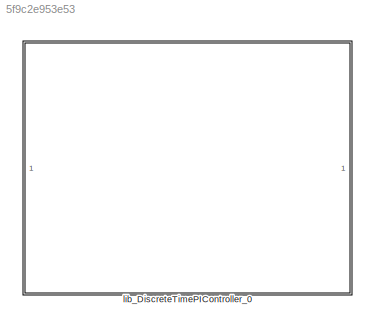
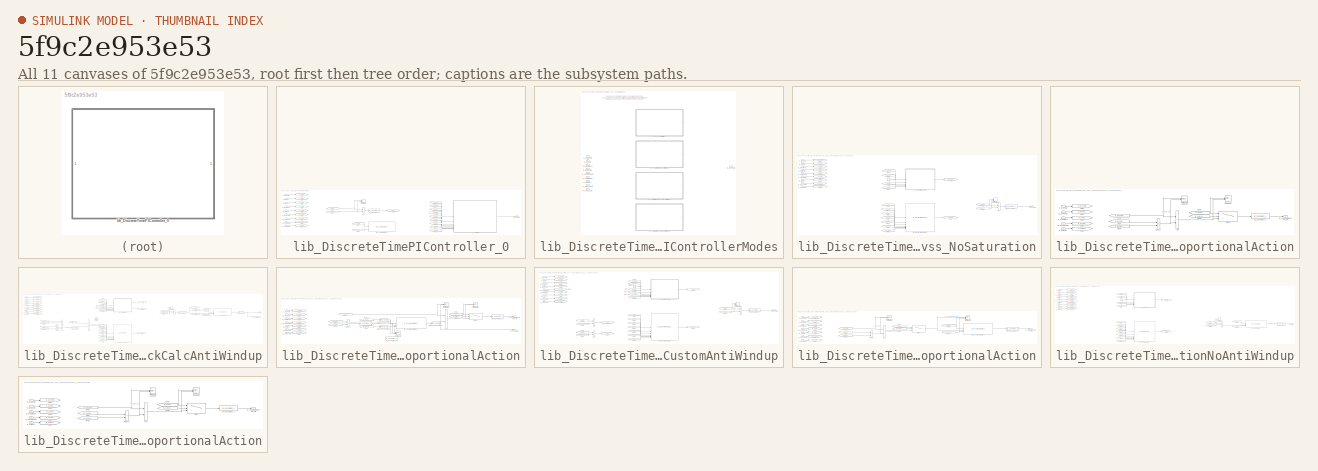
[diagram: thumbnail index - all 11 canvases of the model, root first then tree order]
MODEL slx_5f9c2e953e53
KIND library
CONFIG AbsTol = auto
CONFIG EnableMultiTasking = off
CONFIG FixedStep = auto
CONFIG MaxStep = auto
CONFIG MinStep = auto
CONFIG RelTol = 1e-3
CONFIG SampleTimeConstraint = Unconstrained
CONFIG SolverName = VariableStepAuto
CONFIG StartTime = 0.0
CONFIG StopTime = 10.0
BLOCK [SubSystem] lib_DiscreteTimePIController_0
BLOCK [Sum] lib_DiscreteTimePIController_0/Add1
  IconShape = rectangular
  Inputs = +-
  OutDataTypeStr = Inherit: Inherit via back propagation
  RndMeth = Simplest
BLOCK [Constant] lib_DiscreteTimePIController_0/Constant5
  Value = lb_parSampTime
BLOCK [DataTypeDuplicate] lib_DiscreteTimePIController_0/Data Type Duplicate3
  NameLocation = top
BLOCK [From] lib_DiscreteTimePIController_0/From
  GotoTag = lb_genRef
BLOCK [From] lib_DiscreteTimePIController_0/From1
  GotoTag = lb_genAct
BLOCK [From] lib_DiscreteTimePIController_0/From10
  GotoTag = lb_genInpErr
BLOCK [From] lib_DiscreteTimePIController_0/From2
  GotoTag = lb_genPropGain
BLOCK [From] lib_DiscreteTimePIController_0/From3
  Commented = on
  GotoTag = lb_genInpErrUpLim
BLOCK [From] lib_DiscreteTimePIController_0/From4
  Commented = on
  GotoTag = lb_genInpErrLowLim
BLOCK [From] lib_DiscreteTimePIController_0/From41
  GotoTag = lb_bolRset
BLOCK [From] lib_DiscreteTimePIController_0/From43
  GotoTag = lb_genInitCond
BLOCK [From] lib_DiscreteTimePIController_0/From44
  GotoTag = lb_genLowLim
BLOCK [From] lib_DiscreteTimePIController_0/From45
  GotoTag = lb_genUpLim
BLOCK [From] lib_DiscreteTimePIController_0/From46
  GotoTag = lb_genIntgGain
BLOCK [From] lib_DiscreteTimePIController_0/From47
  GotoTag = lb_genFdfw
BLOCK [Goto] lib_DiscreteTimePIController_0/Goto1
  GotoTag = lb_genFdfw
BLOCK [Goto] lib_DiscreteTimePIController_0/Goto18
  GotoTag = lb_genIntgGain
BLOCK [Goto] lib_DiscreteTimePIController_0/Goto2
  GotoTag = lb_genInpErr
BLOCK [Goto] lib_DiscreteTimePIController_0/Goto3
  GotoTag = lb_genRef
BLOCK [Goto] lib_DiscreteTimePIController_0/Goto4
  GotoTag = lb_genAct
BLOCK [Goto] lib_DiscreteTimePIController_0/Goto5
  GotoTag = lb_genInitCond
BLOCK [Goto] lib_DiscreteTimePIController_0/Goto6
  GotoTag = lb_bolRset
BLOCK [Goto] lib_DiscreteTimePIController_0/Goto7
  GotoTag = lb_genLowLim
BLOCK [Goto] lib_DiscreteTimePIController_0/Goto8
  GotoTag = lb_genUpLim
BLOCK [Goto] lib_DiscreteTimePIController_0/Goto9
  GotoTag = lb_genPropGain
BLOCK [Inport] lib_DiscreteTimePIController_0/lb_bolRset
  OutDataTypeStr = boolean
  Port = 5
BLOCK [Inport] lib_DiscreteTimePIController_0/lb_genAct
  OutMax = lb_parRefInpMaxVal
  OutMin = lb_parRefInpMinVal
  Port = 3
BLOCK [Inport] lib_DiscreteTimePIController_0/lb_genFdfw
  OutDataTypeStr = lb_parOutpDataType
BLOCK [Inport] lib_DiscreteTimePIController_0/lb_genInitCond
  OutDataTypeStr = lb_parOutpDataType
  Port = 4
BLOCK [Inport] lib_DiscreteTimePIController_0/lb_genIntgGain
  OutMax = lb_parMaxIntgGain
  OutMin = 0
  Port = 9
BLOCK [Inport] lib_DiscreteTimePIController_0/lb_genLowLim
  OutDataTypeStr = lb_parOutpDataType
  Port = 6
BLOCK [Outport] lib_DiscreteTimePIController_0/lb_genOutp
  VectorParamsAs1DForOutWhenUnconnected = off
BLOCK [Inport] lib_DiscreteTimePIController_0/lb_genPropGain
  OutMax = lb_parMaxPropGain
  OutMin = 0
  Port = 8
BLOCK [Inport] lib_DiscreteTimePIController_0/lb_genRef
  OutMax = lb_parRefInpMaxVal
  OutMin = lb_parRefInpMinVal
  Port = 2
BLOCK [Inport] lib_DiscreteTimePIController_0/lb_genUpLim
  OutDataTypeStr = lb_parOutpDataType
  Port = 7
BLOCK [Reference] lib_DiscreteTimePIController_0/lib_Conversion_2  REF=lib_conversion/lib_Conversion_0  (lib defined in slx_7f5c0202220d)
  SourceBlock = lib_conversion/lib_Conversion_0
BLOCK [Reference] lib_DiscreteTimePIController_0/lib_DynamicSaturator_0  REF=lib_dynamic_saturator/lib_DynamicSaturator_0  (lib defined in slx_fcc78f0d1256)
  Commented = on
  SourceBlock = lib_dynamic_saturator/lib_DynamicSaturator_0
BLOCK [SubSystem] lib_DiscreteTimePIController_0/vss_PIControllerModes
  Variant = on
BLOCK [Inport] lib_DiscreteTimePIController_0/vss_PIControllerModes/lb_bolRset
  Port = 7
BLOCK [Inport] lib_DiscreteTimePIController_0/vss_PIControllerModes/lb_genFdfw
BLOCK [Inport] lib_DiscreteTimePIController_0/vss_PIControllerModes/lb_genInitCond
  Port = 3
BLOCK [Inport] lib_DiscreteTimePIController_0/vss_PIControllerModes/lb_genInp
  Port = 2
BLOCK [Inport] lib_DiscreteTimePIController_0/vss_PIControllerModes/lb_genIntgGain
  Port = 6
BLOCK [Inport] lib_DiscreteTimePIController_0/vss_PIControllerModes/lb_genLowLim
  Port = 8
BLOCK [Outport] lib_DiscreteTimePIController_0/vss_PIControllerModes/lb_genOutp
BLOCK [Inport] lib_DiscreteTimePIController_0/vss_PIControllerModes/lb_genPropGain
  Port = 5
BLOCK [Inport] lib_DiscreteTimePIController_0/vss_PIControllerModes/lb_genUpLim
  Port = 9
BLOCK [Inport] lib_DiscreteTimePIController_0/vss_PIControllerModes/lb_tSampTime
  Port = 4
BLOCK [SubSystem] lib_DiscreteTimePIController_0/vss_PIControllerModes/vss_NoSaturation
  VariantControl = lb_parSatMode == 1
BLOCK [Sum] lib_DiscreteTimePIController_0/vss_PIControllerModes/vss_NoSaturation/Add2
  IconShape = rectangular
  OutDataTypeStr = Inherit: Inherit via back propagation
  RndMeth = Simplest
BLOCK [Constant] lib_DiscreteTimePIController_0/vss_PIControllerModes/vss_NoSaturation/Constant4
  OutDataTypeStr = lb_parOutpDataType
  Value = 0
BLOCK [DataTypeDuplicate] lib_DiscreteTimePIController_0/vss_PIControllerModes/vss_NoSaturation/Data Type Duplicate2
  NameLocation = top
BLOCK [From] lib_DiscreteTimePIController_0/vss_PIControllerModes/vss_NoSaturation/From
  GotoTag = lb_genInpErr
BLOCK [From] lib_DiscreteTimePIController_0/vss_PIControllerModes/vss_NoSaturation/From1
  GotoTag = lb_genLowLim
BLOCK [From] lib_DiscreteTimePIController_0/vss_PIControllerModes/vss_NoSaturation/From12
  GotoTag = lb_genUnSatIntgActn
BLOCK [From] lib_DiscreteTimePIController_0/vss_PIControllerModes/vss_NoSaturation/From2
  GotoTag = lb_genUpLim
BLOCK [From] lib_DiscreteTimePIController_0/vss_PIControllerModes/vss_NoSaturation/From26
  GotoTag = lb_genInpErr
BLOCK [From] lib_DiscreteTimePIController_0/vss_PIControllerModes/vss_NoSaturation/From27
  GotoTag = lb_bolRset
BLOCK [From] lib_DiscreteTimePIController_0/vss_PIControllerModes/vss_NoSaturation/From3
  GotoTag = lb_tSampTime
BLOCK [From] lib_DiscreteTimePIController_0/vss_PIControllerModes/vss_NoSaturation/From30
  GotoTag = lb_bolRset
BLOCK [From] lib_DiscreteTimePIController_0/vss_PIControllerModes/vss_NoSaturation/From31
  GotoTag = lb_genFdfw
BLOCK [From] lib_DiscreteTimePIController_0/vss_PIControllerModes/vss_NoSaturation/From32
  GotoTag = lb_genInitCond
BLOCK [From] lib_DiscreteTimePIController_0/vss_PIControllerModes/vss_NoSaturation/From4
  GotoTag = lb_genPropGain
BLOCK [From] lib_DiscreteTimePIController_0/vss_PIControllerModes/vss_NoSaturation/From5
  GotoTag = lb_unSatFdfwPlusPropActn
BLOCK [From] lib_DiscreteTimePIController_0/vss_PIControllerModes/vss_NoSaturation/From9
  GotoTag = lb_genIntgGain
BLOCK [Goto] lib_DiscreteTimePIController_0/vss_PIControllerModes/vss_NoSaturation/Goto
  GotoTag = lb_genInpErr
BLOCK [Goto] lib_DiscreteTimePIController_0/vss_PIControllerModes/vss_NoSaturation/Goto1
  GotoTag = lb_genLowLim
BLOCK [Goto] lib_DiscreteTimePIController_0/vss_PIControllerModes/vss_NoSaturation/Goto10
  GotoTag = lb_genFdfw
BLOCK [Goto] lib_DiscreteTimePIController_0/vss_PIControllerModes/vss_NoSaturation/Goto2
  GotoTag = lb_genUpLim
BLOCK [Goto] lib_DiscreteTimePIController_0/vss_PIControllerModes/vss_NoSaturation/Goto3
  GotoTag = lb_genInitCond
BLOCK [Goto] lib_DiscreteTimePIController_0/vss_PIControllerModes/vss_NoSaturation/Goto4
  GotoTag = lb_genIntgGain
BLOCK [Goto] lib_DiscreteTimePIController_0/vss_PIControllerModes/vss_NoSaturation/Goto5
  GotoTag = lb_bolRset
BLOCK [Goto] lib_DiscreteTimePIController_0/vss_PIControllerModes/vss_NoSaturation/Goto6
  GotoTag = lb_tSampTime
BLOCK [Goto] lib_DiscreteTimePIController_0/vss_PIControllerModes/vss_NoSaturation/Goto7
  GotoTag = lb_genUnSatIntgActn
BLOCK [Goto] lib_DiscreteTimePIController_0/vss_PIControllerModes/vss_NoSaturation/Goto8
  GotoTag = lb_unSatFdfwPlusPropActn
BLOCK [Goto] lib_DiscreteTimePIController_0/vss_PIControllerModes/vss_NoSaturation/Goto9
  GotoTag = lb_genPropGain
BLOCK [Inport] lib_DiscreteTimePIController_0/vss_PIControllerModes/vss_NoSaturation/lb_bolRset
  Port = 7
BLOCK [Inport] lib_DiscreteTimePIController_0/vss_PIControllerModes/vss_NoSaturation/lb_genFdfw
BLOCK [Inport] lib_DiscreteTimePIController_0/vss_PIControllerModes/vss_NoSaturation/lb_genInitCond
  Port = 3
BLOCK [Inport] lib_DiscreteTimePIController_0/vss_PIControllerModes/vss_NoSaturation/lb_genInp
  Port = 2
BLOCK [Inport] lib_DiscreteTimePIController_0/vss_PIControllerModes/vss_NoSaturation/lb_genIntgGain
  Port = 6
BLOCK [Inport] lib_DiscreteTimePIController_0/vss_PIControllerModes/vss_NoSaturation/lb_genLowLim
  Port = 8
BLOCK [Outport] lib_DiscreteTimePIController_0/vss_PIControllerModes/vss_NoSaturation/lb_genOutp
  VectorParamsAs1DForOutWhenUnconnected = off
BLOCK [Inport] lib_DiscreteTimePIController_0/vss_PIControllerModes/vss_NoSaturation/lb_genPropGain
  Port = 5
BLOCK [Inport] lib_DiscreteTimePIController_0/vss_PIControllerModes/vss_NoSaturation/lb_genUpLim
  Port = 9
BLOCK [Inport] lib_DiscreteTimePIController_0/vss_PIControllerModes/vss_NoSaturation/lb_tSampTime
  Port = 4
BLOCK [Reference] lib_DiscreteTimePIController_0/vss_PIControllerModes/vss_NoSaturation/lib_Conversion_1  REF=lib_conversion/lib_Conversion_0  (lib defined in slx_7f5c0202220d)
  SourceBlock = lib_conversion/lib_Conversion_0
BLOCK [Reference] lib_DiscreteTimePIController_0/vss_PIControllerModes/vss_NoSaturation/lib_DiscreteTimeIntegrator_1  REF=lib_discrete_time_integrator/lib_DiscreteTimeIntegrator_0
  LibrarySourceBlock = vhit_control_library/lib_DiscreteTimeIntegrator_0
  SourceBlock = lib_discrete_time_integrator/lib_DiscreteTimeIntegrator_0
BLOCK [SubSystem] lib_DiscreteTimePIController_0/vss_PIControllerModes/vss_NoSaturation/sss_ProportionalAction
BLOCK [Sum] lib_DiscreteTimePIController_0/vss_PIControllerModes/vss_NoSaturation/sss_ProportionalAction/Add
  IconShape = rectangular
  OutDataTypeStr = Inherit: Same as first input
  RndMeth = Simplest
BLOCK [DataTypeDuplicate] lib_DiscreteTimePIController_0/vss_PIControllerModes/vss_NoSaturation/sss_ProportionalAction/Data Type Duplicate
BLOCK [DataTypeDuplicate] lib_DiscreteTimePIController_0/vss_PIControllerModes/vss_NoSaturation/sss_ProportionalAction/Data Type Duplicate1
BLOCK [From] lib_DiscreteTimePIController_0/vss_PIControllerModes/vss_NoSaturation/sss_ProportionalAction/From
  GotoTag = lb_genPropGain
BLOCK [From] lib_DiscreteTimePIController_0/vss_PIControllerModes/vss_NoSaturation/sss_ProportionalAction/From2
  GotoTag = lb_genInpErr
BLOCK [From] lib_DiscreteTimePIController_0/vss_PIControllerModes/vss_NoSaturation/sss_ProportionalAction/From3
  GotoTag = lb_genFdfw
BLOCK [From] lib_DiscreteTimePIController_0/vss_PIControllerModes/vss_NoSaturation/sss_ProportionalAction/From5
  GotoTag = lb_bolRset
BLOCK [From] lib_DiscreteTimePIController_0/vss_PIControllerModes/vss_NoSaturation/sss_ProportionalAction/From6
  GotoTag = lb_genInitCond
BLOCK [Goto] lib_DiscreteTimePIController_0/vss_PIControllerModes/vss_NoSaturation/sss_ProportionalAction/Goto2
  GotoTag = lb_genInpErr
BLOCK [Goto] lib_DiscreteTimePIController_0/vss_PIControllerModes/vss_NoSaturation/sss_ProportionalAction/Goto3
  GotoTag = lb_genFdfw
BLOCK [Goto] lib_DiscreteTimePIController_0/vss_PIControllerModes/vss_NoSaturation/sss_ProportionalAction/Goto4
  GotoTag = lb_bolRset
BLOCK [Goto] lib_DiscreteTimePIController_0/vss_PIControllerModes/vss_NoSaturation/sss_ProportionalAction/Goto5
  GotoTag = lb_genInitCond
BLOCK [Goto] lib_DiscreteTimePIController_0/vss_PIControllerModes/vss_NoSaturation/sss_ProportionalAction/Goto9
  GotoTag = lb_genPropGain
BLOCK [Product] lib_DiscreteTimePIController_0/vss_PIControllerModes/vss_NoSaturation/sss_ProportionalAction/Product
  OutDataTypeStr = Inherit: Inherit via back propagation
  RndMeth = Simplest
BLOCK [Switch] lib_DiscreteTimePIController_0/vss_PIControllerModes/vss_NoSaturation/sss_ProportionalAction/Switch1
  Criteria = u2 ~= 0
  InputSameDT = off
  OutDataTypeStr = Inherit: Inherit via back propagation
  SaturateOnIntegerOverflow = off
BLOCK [Inport] lib_DiscreteTimePIController_0/vss_PIControllerModes/vss_NoSaturation/sss_ProportionalAction/lb_bolRset
  Port = 5
BLOCK [Inport] lib_DiscreteTimePIController_0/vss_PIControllerModes/vss_NoSaturation/sss_ProportionalAction/lb_genFdfw
BLOCK [Inport] lib_DiscreteTimePIController_0/vss_PIControllerModes/vss_NoSaturation/sss_ProportionalAction/lb_genInitCond
  Port = 3
BLOCK [Inport] lib_DiscreteTimePIController_0/vss_PIControllerModes/vss_NoSaturation/sss_ProportionalAction/lb_genInpErr
  Port = 2
BLOCK [Inport] lib_DiscreteTimePIController_0/vss_PIControllerModes/vss_NoSaturation/sss_ProportionalAction/lb_genPropGain
  Port = 4
BLOCK [Outport] lib_DiscreteTimePIController_0/vss_PIControllerModes/vss_NoSaturation/sss_ProportionalAction/lb_unSatFdfwPlusPropActn
BLOCK [Reference] lib_DiscreteTimePIController_0/vss_PIControllerModes/vss_NoSaturation/sss_ProportionalAction/lib_Conversion_1  REF=lib_conversion/lib_Conversion_0  (lib defined in slx_7f5c0202220d)
  SourceBlock = lib_conversion/lib_Conversion_0
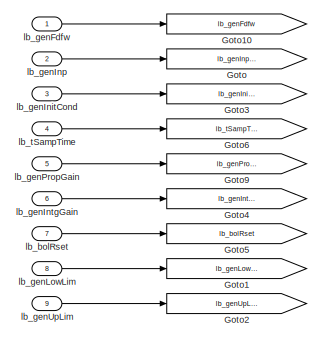
[diagram: lib_DiscreteTimePIController_0/vss_PIControllerModes/vss_SaturationBackCalcAntiWindup - part 1/4, top left region]
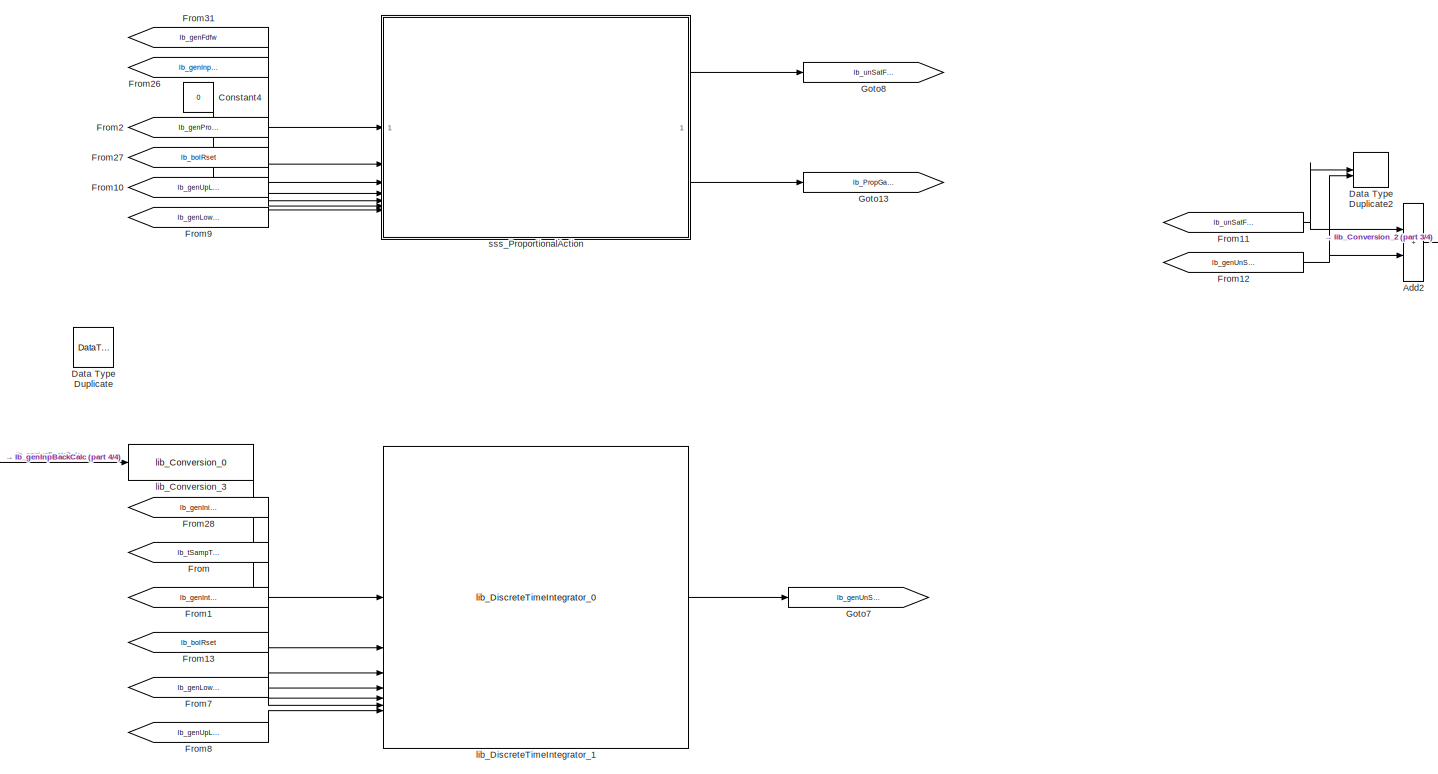
[diagram: lib_DiscreteTimePIController_0/vss_PIControllerModes/vss_SaturationBackCalcAntiWindup - part 2/4, center side, full height]
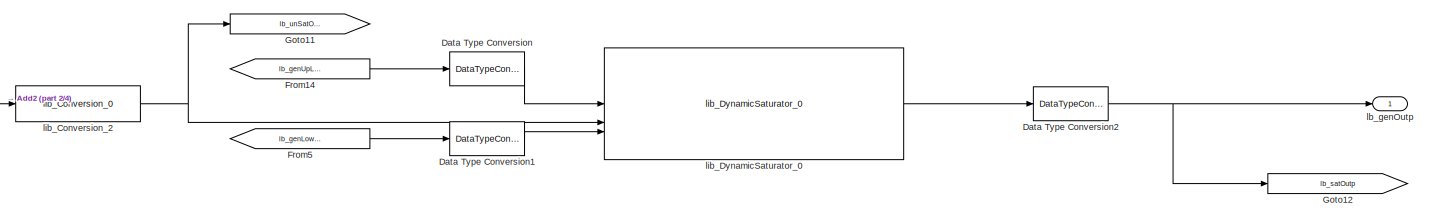
[diagram: lib_DiscreteTimePIController_0/vss_PIControllerModes/vss_SaturationBackCalcAntiWindup - part 3/4, middle right region]
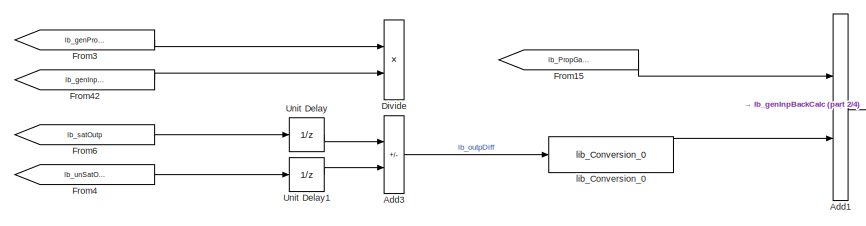
[diagram: lib_DiscreteTimePIController_0/vss_PIControllerModes/vss_SaturationBackCalcAntiWindup - part 4/4, middle left region]
BLOCK [SubSystem] lib_DiscreteTimePIController_0/vss_PIControllerModes/vss_SaturationBackCalcAntiWindup
  VariantControl = lb_parSatMode == 3
BLOCK [Sum] lib_DiscreteTimePIController_0/vss_PIControllerModes/vss_SaturationBackCalcAntiWindup/Add1
  IconShape = rectangular
  OutDataTypeStr = Inherit: Inherit via back propagation
  RndMeth = Simplest
BLOCK [Sum] lib_DiscreteTimePIController_0/vss_PIControllerModes/vss_SaturationBackCalcAntiWindup/Add2
  IconShape = rectangular
  OutDataTypeStr = Inherit: Inherit via back propagation
  RndMeth = Simplest
BLOCK [Sum] lib_DiscreteTimePIController_0/vss_PIControllerModes/vss_SaturationBackCalcAntiWindup/Add3
  IconShape = rectangular
  Inputs = +-
  OutDataTypeStr = Inherit: Inherit via back propagation
  RndMeth = Simplest
BLOCK [Constant] lib_DiscreteTimePIController_0/vss_PIControllerModes/vss_SaturationBackCalcAntiWindup/Constant4
  OutDataTypeStr = lb_parOutpDataType
  Value = 0
BLOCK [DataTypeConversion] lib_DiscreteTimePIController_0/vss_PIControllerModes/vss_SaturationBackCalcAntiWindup/Data Type Conversion
  OutDataTypeStr = lb_outpDiffDataType
  RndMeth = Floor
  SaturateOnIntegerOverflow = off
BLOCK [DataTypeConversion] lib_DiscreteTimePIController_0/vss_PIControllerModes/vss_SaturationBackCalcAntiWindup/Data Type Conversion1
  OutDataTypeStr = lb_outpDiffDataType
  RndMeth = Floor
  SaturateOnIntegerOverflow = off
BLOCK [DataTypeConversion] lib_DiscreteTimePIController_0/vss_PIControllerModes/vss_SaturationBackCalcAntiWindup/Data Type Conversion2
  OutDataTypeStr = lb_parOutpDataType
  RndMeth = Floor
  SaturateOnIntegerOverflow = off
BLOCK [DataTypeDuplicate] lib_DiscreteTimePIController_0/vss_PIControllerModes/vss_SaturationBackCalcAntiWindup/Data Type Duplicate
  Commented = on
BLOCK [DataTypeDuplicate] lib_DiscreteTimePIController_0/vss_PIControllerModes/vss_SaturationBackCalcAntiWindup/Data Type Duplicate2
  NameLocation = top
BLOCK [Product] lib_DiscreteTimePIController_0/vss_PIControllerModes/vss_SaturationBackCalcAntiWindup/Divide
  Commented = on
  Inputs = **
  OutDataTypeStr = Inherit: Inherit via back propagation
BLOCK [From] lib_DiscreteTimePIController_0/vss_PIControllerModes/vss_SaturationBackCalcAntiWindup/From
  GotoTag = lb_tSampTime
BLOCK [From] lib_DiscreteTimePIController_0/vss_PIControllerModes/vss_SaturationBackCalcAntiWindup/From1
  GotoTag = lb_genIntgGain
BLOCK [From] lib_DiscreteTimePIController_0/vss_PIControllerModes/vss_SaturationBackCalcAntiWindup/From10
  GotoTag = lb_genUpLim
BLOCK [From] lib_DiscreteTimePIController_0/vss_PIControllerModes/vss_SaturationBackCalcAntiWindup/From11
  GotoTag = lb_unSatFdfwPlusPropActn
BLOCK [From] lib_DiscreteTimePIController_0/vss_PIControllerModes/vss_SaturationBackCalcAntiWindup/From12
  GotoTag = lb_genUnSatIntgActn
BLOCK [From] lib_DiscreteTimePIController_0/vss_PIControllerModes/vss_SaturationBackCalcAntiWindup/From13
  GotoTag = lb_bolRset
BLOCK [From] lib_DiscreteTimePIController_0/vss_PIControllerModes/vss_SaturationBackCalcAntiWindup/From14
  GotoTag = lb_genUpLim
BLOCK [From] lib_DiscreteTimePIController_0/vss_PIControllerModes/vss_SaturationBackCalcAntiWindup/From15
  GotoTag = lb_PropGainErr
BLOCK [From] lib_DiscreteTimePIController_0/vss_PIControllerModes/vss_SaturationBackCalcAntiWindup/From2
  GotoTag = lb_genPropGain
BLOCK [From] lib_DiscreteTimePIController_0/vss_PIControllerModes/vss_SaturationBackCalcAntiWindup/From26
  GotoTag = lb_genInpErr
BLOCK [From] lib_DiscreteTimePIController_0/vss_PIControllerModes/vss_SaturationBackCalcAntiWindup/From27
  GotoTag = lb_bolRset
BLOCK [From] lib_DiscreteTimePIController_0/vss_PIControllerModes/vss_SaturationBackCalcAntiWindup/From28
  GotoTag = lb_genInitCond
BLOCK [From] lib_DiscreteTimePIController_0/vss_PIControllerModes/vss_SaturationBackCalcAntiWindup/From3
  Commented = on
  GotoTag = lb_genPropGain
BLOCK [From] lib_DiscreteTimePIController_0/vss_PIControllerModes/vss_SaturationBackCalcAntiWindup/From31
  GotoTag = lb_genFdfw
BLOCK [From] lib_DiscreteTimePIController_0/vss_PIControllerModes/vss_SaturationBackCalcAntiWindup/From4
  GotoTag = lb_unSatOutp
BLOCK [From] lib_DiscreteTimePIController_0/vss_PIControllerModes/vss_SaturationBackCalcAntiWindup/From42
  Commented = on
  GotoTag = lb_genInpErr
BLOCK [From] lib_DiscreteTimePIController_0/vss_PIControllerModes/vss_SaturationBackCalcAntiWindup/From5
  GotoTag = lb_genLowLim
BLOCK [From] lib_DiscreteTimePIController_0/vss_PIControllerModes/vss_SaturationBackCalcAntiWindup/From6
  GotoTag = lb_satOutp
BLOCK [From] lib_DiscreteTimePIController_0/vss_PIControllerModes/vss_SaturationBackCalcAntiWindup/From7
  GotoTag = lb_genLowLim
BLOCK [From] lib_DiscreteTimePIController_0/vss_PIControllerModes/vss_SaturationBackCalcAntiWindup/From8
  GotoTag = lb_genUpLim
BLOCK [From] lib_DiscreteTimePIController_0/vss_PIControllerModes/vss_SaturationBackCalcAntiWindup/From9
  GotoTag = lb_genLowLim
BLOCK [Goto] lib_DiscreteTimePIController_0/vss_PIControllerModes/vss_SaturationBackCalcAntiWindup/Goto
  GotoTag = lb_genInpErr
BLOCK [Goto] lib_DiscreteTimePIController_0/vss_PIControllerModes/vss_SaturationBackCalcAntiWindup/Goto1
  GotoTag = lb_genLowLim
BLOCK [Goto] lib_DiscreteTimePIController_0/vss_PIControllerModes/vss_SaturationBackCalcAntiWindup/Goto10
  GotoTag = lb_genFdfw
BLOCK [Goto] lib_DiscreteTimePIController_0/vss_PIControllerModes/vss_SaturationBackCalcAntiWindup/Goto11
  GotoTag = lb_unSatOutp
BLOCK [Goto] lib_DiscreteTimePIController_0/vss_PIControllerModes/vss_SaturationBackCalcAntiWindup/Goto12
  GotoTag = lb_satOutp
BLOCK [Goto] lib_DiscreteTimePIController_0/vss_PIControllerModes/vss_SaturationBackCalcAntiWindup/Goto13
  GotoTag = lb_PropGainErr
BLOCK [Goto] lib_DiscreteTimePIController_0/vss_PIControllerModes/vss_SaturationBackCalcAntiWindup/Goto2
  GotoTag = lb_genUpLim
BLOCK [Goto] lib_DiscreteTimePIController_0/vss_PIControllerModes/vss_SaturationBackCalcAntiWindup/Goto3
  GotoTag = lb_genInitCond
BLOCK [Goto] lib_DiscreteTimePIController_0/vss_PIControllerModes/vss_SaturationBackCalcAntiWindup/Goto4
  GotoTag = lb_genIntgGain
BLOCK [Goto] lib_DiscreteTimePIController_0/vss_PIControllerModes/vss_SaturationBackCalcAntiWindup/Goto5
  GotoTag = lb_bolRset
BLOCK [Goto] lib_DiscreteTimePIController_0/vss_PIControllerModes/vss_SaturationBackCalcAntiWindup/Goto6
  GotoTag = lb_tSampTime
BLOCK [Goto] lib_DiscreteTimePIController_0/vss_PIControllerModes/vss_SaturationBackCalcAntiWindup/Goto7
  GotoTag = lb_genUnSatIntgActn
BLOCK [Goto] lib_DiscreteTimePIController_0/vss_PIControllerModes/vss_SaturationBackCalcAntiWindup/Goto8
  GotoTag = lb_unSatFdfwPlusPropActn
BLOCK [Goto] lib_DiscreteTimePIController_0/vss_PIControllerModes/vss_SaturationBackCalcAntiWindup/Goto9
  GotoTag = lb_genPropGain
BLOCK [UnitDelay] lib_DiscreteTimePIController_0/vss_PIControllerModes/vss_SaturationBackCalcAntiWindup/Unit Delay
  HasFrameUpgradeWarning = on
  SampleTime = -1
BLOCK [UnitDelay] lib_DiscreteTimePIController_0/vss_PIControllerModes/vss_SaturationBackCalcAntiWindup/Unit Delay1
  HasFrameUpgradeWarning = on
  SampleTime = -1
BLOCK [Inport] lib_DiscreteTimePIController_0/vss_PIControllerModes/vss_SaturationBackCalcAntiWindup/lb_bolRset
  Port = 7
BLOCK [Inport] lib_DiscreteTimePIController_0/vss_PIControllerModes/vss_SaturationBackCalcAntiWindup/lb_genFdfw
BLOCK [Inport] lib_DiscreteTimePIController_0/vss_PIControllerModes/vss_SaturationBackCalcAntiWindup/lb_genInitCond
  Port = 3
BLOCK [Inport] lib_DiscreteTimePIController_0/vss_PIControllerModes/vss_SaturationBackCalcAntiWindup/lb_genInp
  Port = 2
BLOCK [Inport] lib_DiscreteTimePIController_0/vss_PIControllerModes/vss_SaturationBackCalcAntiWindup/lb_genIntgGain
  Port = 6
BLOCK [Inport] lib_DiscreteTimePIController_0/vss_PIControllerModes/vss_SaturationBackCalcAntiWindup/lb_genLowLim
  Port = 8
BLOCK [Outport] lib_DiscreteTimePIController_0/vss_PIControllerModes/vss_SaturationBackCalcAntiWindup/lb_genOutp
  VectorParamsAs1DForOutWhenUnconnected = off
BLOCK [Inport] lib_DiscreteTimePIController_0/vss_PIControllerModes/vss_SaturationBackCalcAntiWindup/lb_genPropGain
  Port = 5
BLOCK [Inport] lib_DiscreteTimePIController_0/vss_PIControllerModes/vss_SaturationBackCalcAntiWindup/lb_genUpLim
  Port = 9
BLOCK [Inport] lib_DiscreteTimePIController_0/vss_PIControllerModes/vss_SaturationBackCalcAntiWindup/lb_tSampTime
  Port = 4
BLOCK [Reference] lib_DiscreteTimePIController_0/vss_PIControllerModes/vss_SaturationBackCalcAntiWindup/lib_Conversion_0  REF=lib_conversion/lib_Conversion_0  (lib defined in slx_7f5c0202220d)
  SourceBlock = lib_conversion/lib_Conversion_0
BLOCK [Reference] lib_DiscreteTimePIController_0/vss_PIControllerModes/vss_SaturationBackCalcAntiWindup/lib_Conversion_2  REF=lib_conversion/lib_Conversion_0  (lib defined in slx_7f5c0202220d)
  SourceBlock = lib_conversion/lib_Conversion_0
BLOCK [Reference] lib_DiscreteTimePIController_0/vss_PIControllerModes/vss_SaturationBackCalcAntiWindup/lib_Conversion_3  REF=lib_conversion/lib_Conversion_0  (lib defined in slx_7f5c0202220d)
  SourceBlock = lib_conversion/lib_Conversion_0
BLOCK [Reference] lib_DiscreteTimePIController_0/vss_PIControllerModes/vss_SaturationBackCalcAntiWindup/lib_DiscreteTimeIntegrator_1  REF=lib_discrete_time_integrator/lib_DiscreteTimeIntegrator_0
  LibrarySourceBlock = vhit_control_library/lib_DiscreteTimeIntegrator_0
  SourceBlock = lib_discrete_time_integrator/lib_DiscreteTimeIntegrator_0
BLOCK [Reference] lib_DiscreteTimePIController_0/vss_PIControllerModes/vss_SaturationBackCalcAntiWindup/lib_DynamicSaturator_0  REF=lib_dynamic_saturator/lib_DynamicSaturator_0  (lib defined in slx_fcc78f0d1256)
  SourceBlock = lib_dynamic_saturator/lib_DynamicSaturator_0
BLOCK [SubSystem] lib_DiscreteTimePIController_0/vss_PIControllerModes/vss_SaturationBackCalcAntiWindup/sss_ProportionalAction
BLOCK [Sum] lib_DiscreteTimePIController_0/vss_PIControllerModes/vss_SaturationBackCalcAntiWindup/sss_ProportionalAction/Add
  IconShape = rectangular
  OutDataTypeStr = Inherit: Same as first input
  RndMeth = Simplest
BLOCK [DataTypeConversion] lib_DiscreteTimePIController_0/vss_PIControllerModes/vss_SaturationBackCalcAntiWindup/sss_ProportionalAction/Data Type Conversion
  RndMeth = Floor
  SaturateOnIntegerOverflow = off
BLOCK [DataTypeConversion] lib_DiscreteTimePIController_0/vss_PIControllerModes/vss_SaturationBackCalcAntiWindup/sss_ProportionalAction/Data Type Conversion1
  RndMeth = Floor
  SaturateOnIntegerOverflow = off
BLOCK [DataTypeConversion] lib_DiscreteTimePIController_0/vss_PIControllerModes/vss_SaturationBackCalcAntiWindup/sss_ProportionalAction/Data Type Conversion2
  RndMeth = Floor
  SaturateOnIntegerOverflow = off
BLOCK [DataTypeDuplicate] lib_DiscreteTimePIController_0/vss_PIControllerModes/vss_SaturationBackCalcAntiWindup/sss_ProportionalAction/Data Type Duplicate
  NumInputPorts = 3
BLOCK [DataTypeDuplicate] lib_DiscreteTimePIController_0/vss_PIControllerModes/vss_SaturationBackCalcAntiWindup/sss_ProportionalAction/Data Type Duplicate1
BLOCK [DataTypeDuplicate] lib_DiscreteTimePIController_0/vss_PIControllerModes/vss_SaturationBackCalcAntiWindup/sss_ProportionalAction/Data Type Duplicate2
BLOCK [From] lib_DiscreteTimePIController_0/vss_PIControllerModes/vss_SaturationBackCalcAntiWindup/sss_ProportionalAction/From
  GotoTag = lb_genPropGain
BLOCK [From] lib_DiscreteTimePIController_0/vss_PIControllerModes/vss_SaturationBackCalcAntiWindup/sss_ProportionalAction/From1
  GotoTag = lb_genLowLim
BLOCK [From] lib_DiscreteTimePIController_0/vss_PIControllerModes/vss_SaturationBackCalcAntiWindup/sss_ProportionalAction/From14
  GotoTag = lb_genUpLim
BLOCK [From] lib_DiscreteTimePIController_0/vss_PIControllerModes/vss_SaturationBackCalcAntiWindup/sss_ProportionalAction/From2
  GotoTag = lb_genInpErr
BLOCK [From] lib_DiscreteTimePIController_0/vss_PIControllerModes/vss_SaturationBackCalcAntiWindup/sss_ProportionalAction/From3
  GotoTag = lb_genFdfw
BLOCK [From] lib_DiscreteTimePIController_0/vss_PIControllerModes/vss_SaturationBackCalcAntiWindup/sss_ProportionalAction/From5
  GotoTag = lb_bolRset
BLOCK [From] lib_DiscreteTimePIController_0/vss_PIControllerModes/vss_SaturationBackCalcAntiWindup/sss_ProportionalAction/From6
  GotoTag = lb_genInitCond
BLOCK [Goto] lib_DiscreteTimePIController_0/vss_PIControllerModes/vss_SaturationBackCalcAntiWindup/sss_ProportionalAction/Goto
  GotoTag = lb_genUpLim
BLOCK [Goto] lib_DiscreteTimePIController_0/vss_PIControllerModes/vss_SaturationBackCalcAntiWindup/sss_ProportionalAction/Goto1
  GotoTag = lb_genLowLim
BLOCK [Goto] lib_DiscreteTimePIController_0/vss_PIControllerModes/vss_SaturationBackCalcAntiWindup/sss_ProportionalAction/Goto2
  GotoTag = lb_genInpErr
BLOCK [Goto] lib_DiscreteTimePIController_0/vss_PIControllerModes/vss_SaturationBackCalcAntiWindup/sss_ProportionalAction/Goto3
  GotoTag = lb_genFdfw
BLOCK [Goto] lib_DiscreteTimePIController_0/vss_PIControllerModes/vss_SaturationBackCalcAntiWindup/sss_ProportionalAction/Goto4
  GotoTag = lb_bolRset
BLOCK [Goto] lib_DiscreteTimePIController_0/vss_PIControllerModes/vss_SaturationBackCalcAntiWindup/sss_ProportionalAction/Goto5
  GotoTag = lb_genInitCond
BLOCK [Goto] lib_DiscreteTimePIController_0/vss_PIControllerModes/vss_SaturationBackCalcAntiWindup/sss_ProportionalAction/Goto9
  GotoTag = lb_genPropGain
BLOCK [Product] lib_DiscreteTimePIController_0/vss_PIControllerModes/vss_SaturationBackCalcAntiWindup/sss_ProportionalAction/Product
  OutDataTypeStr = Inherit: Inherit via back propagation
  RndMeth = Simplest
BLOCK [Switch] lib_DiscreteTimePIController_0/vss_PIControllerModes/vss_SaturationBackCalcAntiWindup/sss_ProportionalAction/Switch1
  Criteria = u2 ~= 0
  InputSameDT = off
  OutDataTypeStr = Inherit: Inherit via back propagation
  SaturateOnIntegerOverflow = off
BLOCK [Outport] lib_DiscreteTimePIController_0/vss_PIControllerModes/vss_SaturationBackCalcAntiWindup/sss_ProportionalAction/lb_PropGainErr
  Port = 2
BLOCK [Inport] lib_DiscreteTimePIController_0/vss_PIControllerModes/vss_SaturationBackCalcAntiWindup/sss_ProportionalAction/lb_bolRset
  Port = 5
BLOCK [Inport] lib_DiscreteTimePIController_0/vss_PIControllerModes/vss_SaturationBackCalcAntiWindup/sss_ProportionalAction/lb_genFdfw
BLOCK [Inport] lib_DiscreteTimePIController_0/vss_PIControllerModes/vss_SaturationBackCalcAntiWindup/sss_ProportionalAction/lb_genInitCond
  Port = 3
BLOCK [Inport] lib_DiscreteTimePIController_0/vss_PIControllerModes/vss_SaturationBackCalcAntiWindup/sss_ProportionalAction/lb_genInpErr
  Port = 2
BLOCK [Inport] lib_DiscreteTimePIController_0/vss_PIControllerModes/vss_SaturationBackCalcAntiWindup/sss_ProportionalAction/lb_genLowLim
  Port = 7
BLOCK [Inport] lib_DiscreteTimePIController_0/vss_PIControllerModes/vss_SaturationBackCalcAntiWindup/sss_ProportionalAction/lb_genPropGain
  Port = 4
BLOCK [Inport] lib_DiscreteTimePIController_0/vss_PIControllerModes/vss_SaturationBackCalcAntiWindup/sss_ProportionalAction/lb_genUpLim
  Port = 6
BLOCK [Outport] lib_DiscreteTimePIController_0/vss_PIControllerModes/vss_SaturationBackCalcAntiWindup/sss_ProportionalAction/lb_unSatFdfwPlusPropActn
BLOCK [Reference] lib_DiscreteTimePIController_0/vss_PIControllerModes/vss_SaturationBackCalcAntiWindup/sss_ProportionalAction/lib_Conversion_1  REF=lib_conversion/lib_Conversion_0  (lib defined in slx_7f5c0202220d)
  SourceBlock = lib_conversion/lib_Conversion_0
BLOCK [Reference] lib_DiscreteTimePIController_0/vss_PIControllerModes/vss_SaturationBackCalcAntiWindup/sss_ProportionalAction/lib_Conversion_2  REF=lib_conversion/lib_Conversion_0  (lib defined in slx_7f5c0202220d)
  Commented = on
  SourceBlock = lib_conversion/lib_Conversion_0
BLOCK [Reference] lib_DiscreteTimePIController_0/vss_PIControllerModes/vss_SaturationBackCalcAntiWindup/sss_ProportionalAction/lib_Conversion_3  REF=lib_conversion/lib_Conversion_0  (lib defined in slx_7f5c0202220d)
  SourceBlock = lib_conversion/lib_Conversion_0
BLOCK [Reference] lib_DiscreteTimePIController_0/vss_PIControllerModes/vss_SaturationBackCalcAntiWindup/sss_ProportionalAction/lib_DynamicSaturator_0  REF=lib_dynamic_saturator/lib_DynamicSaturator_0  (lib defined in slx_fcc78f0d1256)
  SourceBlock = lib_dynamic_saturator/lib_DynamicSaturator_0
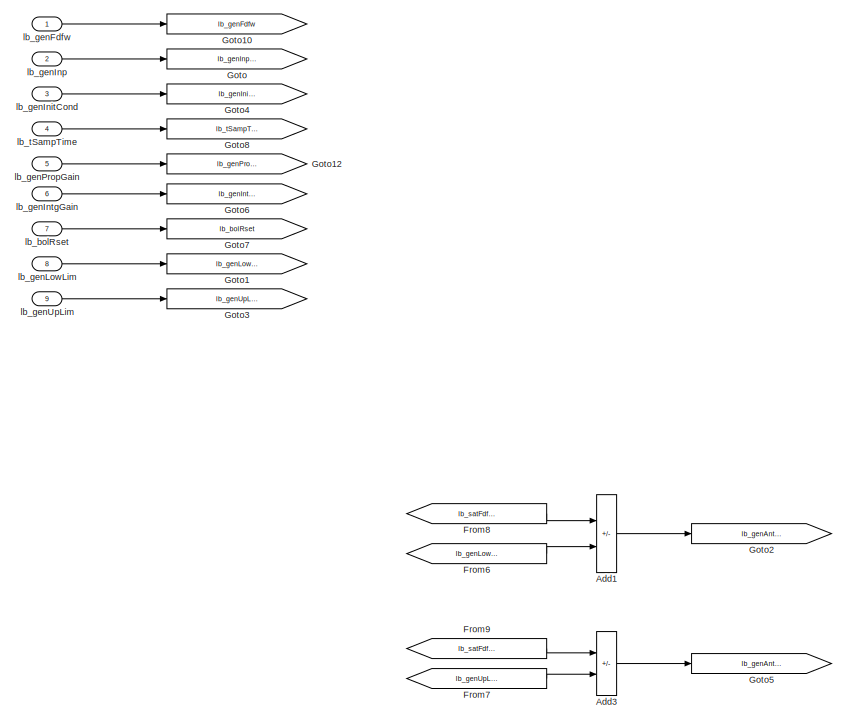
[diagram: lib_DiscreteTimePIController_0/vss_PIControllerModes/vss_SaturationCustomAntiWindup - part 1/3, left side, full height]
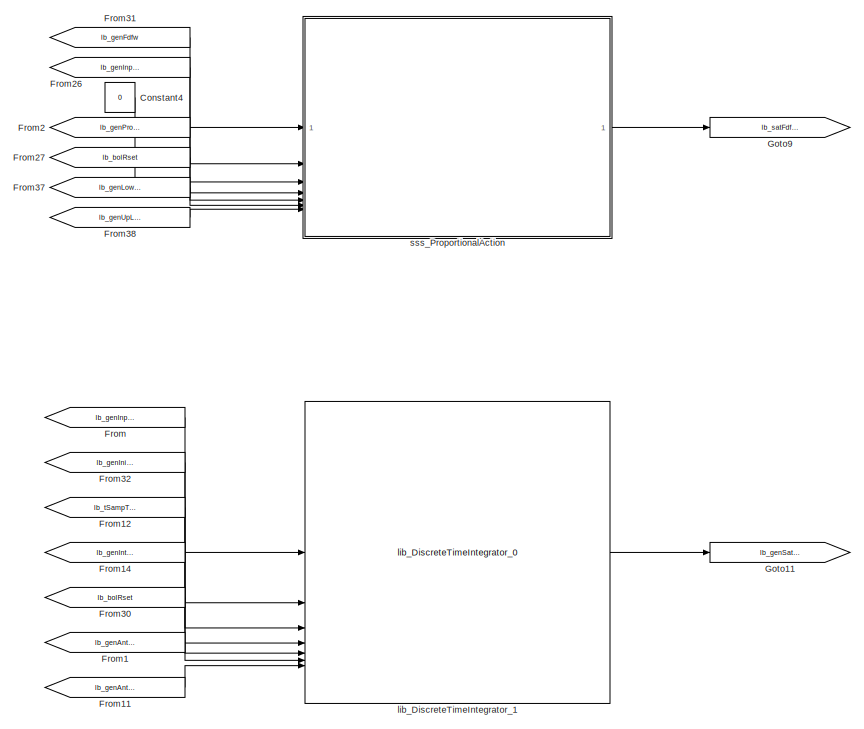
[diagram: lib_DiscreteTimePIController_0/vss_PIControllerModes/vss_SaturationCustomAntiWindup - part 2/3, center side, full height]
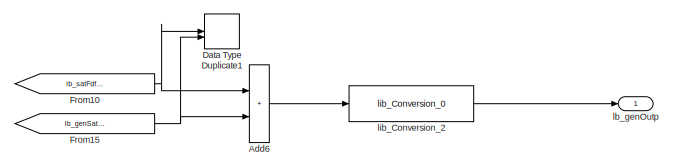
[diagram: lib_DiscreteTimePIController_0/vss_PIControllerModes/vss_SaturationCustomAntiWindup - part 3/3, middle right region]
BLOCK [SubSystem] lib_DiscreteTimePIController_0/vss_PIControllerModes/vss_SaturationCustomAntiWindup
  VariantControl = lb_parSatMode == 4
BLOCK [Sum] lib_DiscreteTimePIController_0/vss_PIControllerModes/vss_SaturationCustomAntiWindup/Add1
  IconShape = rectangular
  Inputs = -+
  OutDataTypeStr = Inherit: Inherit via back propagation
  RndMeth = Simplest
  SaturateOnIntegerOverflow = on
BLOCK [Sum] lib_DiscreteTimePIController_0/vss_PIControllerModes/vss_SaturationCustomAntiWindup/Add3
  IconShape = rectangular
  Inputs = -+
  OutDataTypeStr = Inherit: Inherit via back propagation
  RndMeth = Simplest
  SaturateOnIntegerOverflow = on
BLOCK [Sum] lib_DiscreteTimePIController_0/vss_PIControllerModes/vss_SaturationCustomAntiWindup/Add6
  IconShape = rectangular
  OutDataTypeStr = Inherit: Inherit via back propagation
  RndMeth = Simplest
BLOCK [Constant] lib_DiscreteTimePIController_0/vss_PIControllerModes/vss_SaturationCustomAntiWindup/Constant4
  OutDataTypeStr = lb_parOutpDataType
  Value = 0
BLOCK [DataTypeDuplicate] lib_DiscreteTimePIController_0/vss_PIControllerModes/vss_SaturationCustomAntiWindup/Data Type Duplicate1
  NameLocation = top
BLOCK [From] lib_DiscreteTimePIController_0/vss_PIControllerModes/vss_SaturationCustomAntiWindup/From
  GotoTag = lb_genInpErr
BLOCK [From] lib_DiscreteTimePIController_0/vss_PIControllerModes/vss_SaturationCustomAntiWindup/From1
  GotoTag = lb_genAntiWdpLowLim
BLOCK [From] lib_DiscreteTimePIController_0/vss_PIControllerModes/vss_SaturationCustomAntiWindup/From10
  GotoTag = lb_satFdfwPlusPropActn
BLOCK [From] lib_DiscreteTimePIController_0/vss_PIControllerModes/vss_SaturationCustomAntiWindup/From11
  GotoTag = lb_genAntiWdpUpLim
BLOCK [From] lib_DiscreteTimePIController_0/vss_PIControllerModes/vss_SaturationCustomAntiWindup/From12
  GotoTag = lb_tSampTime
BLOCK [From] lib_DiscreteTimePIController_0/vss_PIControllerModes/vss_SaturationCustomAntiWindup/From14
  GotoTag = lb_genIntgGain
BLOCK [From] lib_DiscreteTimePIController_0/vss_PIControllerModes/vss_SaturationCustomAntiWindup/From15
  GotoTag = lb_genSatIntgActn
BLOCK [From] lib_DiscreteTimePIController_0/vss_PIControllerModes/vss_SaturationCustomAntiWindup/From2
  GotoTag = lb_genPropGain
BLOCK [From] lib_DiscreteTimePIController_0/vss_PIControllerModes/vss_SaturationCustomAntiWindup/From26
  GotoTag = lb_genInpErr
BLOCK [From] lib_DiscreteTimePIController_0/vss_PIControllerModes/vss_SaturationCustomAntiWindup/From27
  GotoTag = lb_bolRset
BLOCK [From] lib_DiscreteTimePIController_0/vss_PIControllerModes/vss_SaturationCustomAntiWindup/From30
  GotoTag = lb_bolRset
BLOCK [From] lib_DiscreteTimePIController_0/vss_PIControllerModes/vss_SaturationCustomAntiWindup/From31
  GotoTag = lb_genFdfw
BLOCK [From] lib_DiscreteTimePIController_0/vss_PIControllerModes/vss_SaturationCustomAntiWindup/From32
  GotoTag = lb_genInitCond
BLOCK [From] lib_DiscreteTimePIController_0/vss_PIControllerModes/vss_SaturationCustomAntiWindup/From37
  GotoTag = lb_genLowLim
BLOCK [From] lib_DiscreteTimePIController_0/vss_PIControllerModes/vss_SaturationCustomAntiWindup/From38
  GotoTag = lb_genUpLim
BLOCK [From] lib_DiscreteTimePIController_0/vss_PIControllerModes/vss_SaturationCustomAntiWindup/From6
  GotoTag = lb_genLowLim
BLOCK [From] lib_DiscreteTimePIController_0/vss_PIControllerModes/vss_SaturationCustomAntiWindup/From7
  GotoTag = lb_genUpLim
BLOCK [From] lib_DiscreteTimePIController_0/vss_PIControllerModes/vss_SaturationCustomAntiWindup/From8
  GotoTag = lb_satFdfwPlusPropActn
BLOCK [From] lib_DiscreteTimePIController_0/vss_PIControllerModes/vss_SaturationCustomAntiWindup/From9
  GotoTag = lb_satFdfwPlusPropActn
BLOCK [Goto] lib_DiscreteTimePIController_0/vss_PIControllerModes/vss_SaturationCustomAntiWindup/Goto
  GotoTag = lb_genInpErr
BLOCK [Goto] lib_DiscreteTimePIController_0/vss_PIControllerModes/vss_SaturationCustomAntiWindup/Goto1
  GotoTag = lb_genLowLim
BLOCK [Goto] lib_DiscreteTimePIController_0/vss_PIControllerModes/vss_SaturationCustomAntiWindup/Goto10
  GotoTag = lb_genFdfw
BLOCK [Goto] lib_DiscreteTimePIController_0/vss_PIControllerModes/vss_SaturationCustomAntiWindup/Goto11
  GotoTag = lb_genSatIntgActn
BLOCK [Goto] lib_DiscreteTimePIController_0/vss_PIControllerModes/vss_SaturationCustomAntiWindup/Goto12
  GotoTag = lb_genPropGain
BLOCK [Goto] lib_DiscreteTimePIController_0/vss_PIControllerModes/vss_SaturationCustomAntiWindup/Goto2
  GotoTag = lb_genAntiWdpLowLim
BLOCK [Goto] lib_DiscreteTimePIController_0/vss_PIControllerModes/vss_SaturationCustomAntiWindup/Goto3
  GotoTag = lb_genUpLim
BLOCK [Goto] lib_DiscreteTimePIController_0/vss_PIControllerModes/vss_SaturationCustomAntiWindup/Goto4
  GotoTag = lb_genInitCond
BLOCK [Goto] lib_DiscreteTimePIController_0/vss_PIControllerModes/vss_SaturationCustomAntiWindup/Goto5
  GotoTag = lb_genAntiWdpUpLim
BLOCK [Goto] lib_DiscreteTimePIController_0/vss_PIControllerModes/vss_SaturationCustomAntiWindup/Goto6
  GotoTag = lb_genIntgGain
BLOCK [Goto] lib_DiscreteTimePIController_0/vss_PIControllerModes/vss_SaturationCustomAntiWindup/Goto7
  GotoTag = lb_bolRset
BLOCK [Goto] lib_DiscreteTimePIController_0/vss_PIControllerModes/vss_SaturationCustomAntiWindup/Goto8
  GotoTag = lb_tSampTime
BLOCK [Goto] lib_DiscreteTimePIController_0/vss_PIControllerModes/vss_SaturationCustomAntiWindup/Goto9
  GotoTag = lb_satFdfwPlusPropActn
BLOCK [Inport] lib_DiscreteTimePIController_0/vss_PIControllerModes/vss_SaturationCustomAntiWindup/lb_bolRset
  Port = 7
BLOCK [Inport] lib_DiscreteTimePIController_0/vss_PIControllerModes/vss_SaturationCustomAntiWindup/lb_genFdfw
BLOCK [Inport] lib_DiscreteTimePIController_0/vss_PIControllerModes/vss_SaturationCustomAntiWindup/lb_genInitCond
  Port = 3
BLOCK [Inport] lib_DiscreteTimePIController_0/vss_PIControllerModes/vss_SaturationCustomAntiWindup/lb_genInp
  Port = 2
BLOCK [Inport] lib_DiscreteTimePIController_0/vss_PIControllerModes/vss_SaturationCustomAntiWindup/lb_genIntgGain
  Port = 6
BLOCK [Inport] lib_DiscreteTimePIController_0/vss_PIControllerModes/vss_SaturationCustomAntiWindup/lb_genLowLim
  Port = 8
BLOCK [Outport] lib_DiscreteTimePIController_0/vss_PIControllerModes/vss_SaturationCustomAntiWindup/lb_genOutp
  VectorParamsAs1DForOutWhenUnconnected = off
BLOCK [Inport] lib_DiscreteTimePIController_0/vss_PIControllerModes/vss_SaturationCustomAntiWindup/lb_genPropGain
  Port = 5
BLOCK [Inport] lib_DiscreteTimePIController_0/vss_PIControllerModes/vss_SaturationCustomAntiWindup/lb_genUpLim
  Port = 9
BLOCK [Inport] lib_DiscreteTimePIController_0/vss_PIControllerModes/vss_SaturationCustomAntiWindup/lb_tSampTime
  Port = 4
BLOCK [Reference] lib_DiscreteTimePIController_0/vss_PIControllerModes/vss_SaturationCustomAntiWindup/lib_Conversion_2  REF=lib_conversion/lib_Conversion_0  (lib defined in slx_7f5c0202220d)
  SourceBlock = lib_conversion/lib_Conversion_0
BLOCK [Reference] lib_DiscreteTimePIController_0/vss_PIControllerModes/vss_SaturationCustomAntiWindup/lib_DiscreteTimeIntegrator_1  REF=lib_discrete_time_integrator/lib_DiscreteTimeIntegrator_0
  LibrarySourceBlock = vhit_control_library/lib_DiscreteTimeIntegrator_0
  SourceBlock = lib_discrete_time_integrator/lib_DiscreteTimeIntegrator_0
BLOCK [SubSystem] lib_DiscreteTimePIController_0/vss_PIControllerModes/vss_SaturationCustomAntiWindup/sss_ProportionalAction
BLOCK [Sum] lib_DiscreteTimePIController_0/vss_PIControllerModes/vss_SaturationCustomAntiWindup/sss_ProportionalAction/Add
  IconShape = rectangular
  OutDataTypeStr = Inherit: Same as first input
  RndMeth = Simplest
BLOCK [DataTypeDuplicate] lib_DiscreteTimePIController_0/vss_PIControllerModes/vss_SaturationCustomAntiWindup/sss_ProportionalAction/Data Type Duplicate
BLOCK [DataTypeDuplicate] lib_DiscreteTimePIController_0/vss_PIControllerModes/vss_SaturationCustomAntiWindup/sss_ProportionalAction/Data Type Duplicate2
  NumInputPorts = 3
BLOCK [From] lib_DiscreteTimePIController_0/vss_PIControllerModes/vss_SaturationCustomAntiWindup/sss_ProportionalAction/From
  GotoTag = lb_genPropGain
BLOCK [From] lib_DiscreteTimePIController_0/vss_PIControllerModes/vss_SaturationCustomAntiWindup/sss_ProportionalAction/From2
  GotoTag = lb_genInpErr
BLOCK [From] lib_DiscreteTimePIController_0/vss_PIControllerModes/vss_SaturationCustomAntiWindup/sss_ProportionalAction/From3
  GotoTag = lb_genFdfw
BLOCK [From] lib_DiscreteTimePIController_0/vss_PIControllerModes/vss_SaturationCustomAntiWindup/sss_ProportionalAction/From4
  GotoTag = lb_genUpLim
BLOCK [From] lib_DiscreteTimePIController_0/vss_PIControllerModes/vss_SaturationCustomAntiWindup/sss_ProportionalAction/From5
  GotoTag = lb_bolRset
BLOCK [From] lib_DiscreteTimePIController_0/vss_PIControllerModes/vss_SaturationCustomAntiWindup/sss_ProportionalAction/From6
  GotoTag = lb_genInitCond
BLOCK [From] lib_DiscreteTimePIController_0/vss_PIControllerModes/vss_SaturationCustomAntiWindup/sss_ProportionalAction/From7
  GotoTag = lb_genLowLim
BLOCK [Goto] lib_DiscreteTimePIController_0/vss_PIControllerModes/vss_SaturationCustomAntiWindup/sss_ProportionalAction/Goto1
  GotoTag = lb_genUpLim
BLOCK [Goto] lib_DiscreteTimePIController_0/vss_PIControllerModes/vss_SaturationCustomAntiWindup/sss_ProportionalAction/Goto2
  GotoTag = lb_genInpErr
BLOCK [Goto] lib_DiscreteTimePIController_0/vss_PIControllerModes/vss_SaturationCustomAntiWindup/sss_ProportionalAction/Goto3
  GotoTag = lb_genFdfw
BLOCK [Goto] lib_DiscreteTimePIController_0/vss_PIControllerModes/vss_SaturationCustomAntiWindup/sss_ProportionalAction/Goto4
  GotoTag = lb_bolRset
BLOCK [Goto] lib_DiscreteTimePIController_0/vss_PIControllerModes/vss_SaturationCustomAntiWindup/sss_ProportionalAction/Goto5
  GotoTag = lb_genInitCond
BLOCK [Goto] lib_DiscreteTimePIController_0/vss_PIControllerModes/vss_SaturationCustomAntiWindup/sss_ProportionalAction/Goto7
  GotoTag = lb_genLowLim
BLOCK [Goto] lib_DiscreteTimePIController_0/vss_PIControllerModes/vss_SaturationCustomAntiWindup/sss_ProportionalAction/Goto9
  GotoTag = lb_genPropGain
BLOCK [Product] lib_DiscreteTimePIController_0/vss_PIControllerModes/vss_SaturationCustomAntiWindup/sss_ProportionalAction/Product
  OutDataTypeStr = Inherit: Inherit via back propagation
  RndMeth = Simplest
BLOCK [Switch] lib_DiscreteTimePIController_0/vss_PIControllerModes/vss_SaturationCustomAntiWindup/sss_ProportionalAction/Switch1
  Criteria = u2 ~= 0
  InputSameDT = off
  OutDataTypeStr = Inherit: Inherit via back propagation
  SaturateOnIntegerOverflow = off
BLOCK [Inport] lib_DiscreteTimePIController_0/vss_PIControllerModes/vss_SaturationCustomAntiWindup/sss_ProportionalAction/lb_bolRset
  Port = 5
BLOCK [Inport] lib_DiscreteTimePIController_0/vss_PIControllerModes/vss_SaturationCustomAntiWindup/sss_ProportionalAction/lb_genFdfw
BLOCK [Inport] lib_DiscreteTimePIController_0/vss_PIControllerModes/vss_SaturationCustomAntiWindup/sss_ProportionalAction/lb_genInitCond
  Port = 3
BLOCK [Inport] lib_DiscreteTimePIController_0/vss_PIControllerModes/vss_SaturationCustomAntiWindup/sss_ProportionalAction/lb_genInpErr
  Port = 2
BLOCK [Inport] lib_DiscreteTimePIController_0/vss_PIControllerModes/vss_SaturationCustomAntiWindup/sss_ProportionalAction/lb_genLowLim
  Port = 6
BLOCK [Inport] lib_DiscreteTimePIController_0/vss_PIControllerModes/vss_SaturationCustomAntiWindup/sss_ProportionalAction/lb_genPropGain
  Port = 4
BLOCK [Inport] lib_DiscreteTimePIController_0/vss_PIControllerModes/vss_SaturationCustomAntiWindup/sss_ProportionalAction/lb_genUpLim
  Port = 7
BLOCK [Outport] lib_DiscreteTimePIController_0/vss_PIControllerModes/vss_SaturationCustomAntiWindup/sss_ProportionalAction/lb_satFdfwPlusPropActn
BLOCK [Reference] lib_DiscreteTimePIController_0/vss_PIControllerModes/vss_SaturationCustomAntiWindup/sss_ProportionalAction/lib_Conversion_1  REF=lib_conversion/lib_Conversion_0  (lib defined in slx_7f5c0202220d)
  SourceBlock = lib_conversion/lib_Conversion_0
BLOCK [Reference] lib_DiscreteTimePIController_0/vss_PIControllerModes/vss_SaturationCustomAntiWindup/sss_ProportionalAction/lib_DynamicSaturator_0  REF=lib_dynamic_saturator/lib_DynamicSaturator_0  (lib defined in slx_fcc78f0d1256)
  SourceBlock = lib_dynamic_saturator/lib_DynamicSaturator_0
BLOCK [SubSystem] lib_DiscreteTimePIController_0/vss_PIControllerModes/vss_SaturationNoAntiWindup
  VariantControl = lb_parSatMode == 2
BLOCK [Sum] lib_DiscreteTimePIController_0/vss_PIControllerModes/vss_SaturationNoAntiWindup/Add2
  IconShape = rectangular
  OutDataTypeStr = Inherit: Inherit via back propagation
  RndMeth = Simplest
BLOCK [Constant] lib_DiscreteTimePIController_0/vss_PIControllerModes/vss_SaturationNoAntiWindup/Constant4
  OutDataTypeStr = lb_parOutpDataType
  Value = 0
BLOCK [DataTypeDuplicate] lib_DiscreteTimePIController_0/vss_PIControllerModes/vss_SaturationNoAntiWindup/Data Type Duplicate2
  NameLocation = top
BLOCK [From] lib_DiscreteTimePIController_0/vss_PIControllerModes/vss_SaturationNoAntiWindup/From
  GotoTag = lb_genInpErr
BLOCK [From] lib_DiscreteTimePIController_0/vss_PIControllerModes/vss_SaturationNoAntiWindup/From1
  GotoTag = lb_genLowLim
BLOCK [From] lib_DiscreteTimePIController_0/vss_PIControllerModes/vss_SaturationNoAntiWindup/From12
  GotoTag = lb_genUnSatIntgActn
BLOCK [From] lib_DiscreteTimePIController_0/vss_PIControllerModes/vss_SaturationNoAntiWindup/From2
  GotoTag = lb_genUpLim
BLOCK [From] lib_DiscreteTimePIController_0/vss_PIControllerModes/vss_SaturationNoAntiWindup/From26
  GotoTag = lb_genInpErr
BLOCK [From] lib_DiscreteTimePIController_0/vss_PIControllerModes/vss_SaturationNoAntiWindup/From27
  GotoTag = lb_bolRset
BLOCK [From] lib_DiscreteTimePIController_0/vss_PIControllerModes/vss_SaturationNoAntiWindup/From3
  GotoTag = lb_tSampTime
BLOCK [From] lib_DiscreteTimePIController_0/vss_PIControllerModes/vss_SaturationNoAntiWindup/From30
  GotoTag = lb_bolRset
BLOCK [From] lib_DiscreteTimePIController_0/vss_PIControllerModes/vss_SaturationNoAntiWindup/From31
  GotoTag = lb_genFdfw
BLOCK [From] lib_DiscreteTimePIController_0/vss_PIControllerModes/vss_SaturationNoAntiWindup/From32
  GotoTag = lb_genInitCond
BLOCK [From] lib_DiscreteTimePIController_0/vss_PIControllerModes/vss_SaturationNoAntiWindup/From4
  GotoTag = lb_genPropGain
BLOCK [From] lib_DiscreteTimePIController_0/vss_PIControllerModes/vss_SaturationNoAntiWindup/From5
  GotoTag = lb_unSatFdfwPlusPropActn
BLOCK [From] lib_DiscreteTimePIController_0/vss_PIControllerModes/vss_SaturationNoAntiWindup/From6
  GotoTag = lb_genLowLim
BLOCK [From] lib_DiscreteTimePIController_0/vss_PIControllerModes/vss_SaturationNoAntiWindup/From7
  GotoTag = lb_genUpLim
BLOCK [From] lib_DiscreteTimePIController_0/vss_PIControllerModes/vss_SaturationNoAntiWindup/From9
  GotoTag = lb_genIntgGain
BLOCK [Goto] lib_DiscreteTimePIController_0/vss_PIControllerModes/vss_SaturationNoAntiWindup/Goto
  GotoTag = lb_genInpErr
BLOCK [Goto] lib_DiscreteTimePIController_0/vss_PIControllerModes/vss_SaturationNoAntiWindup/Goto1
  GotoTag = lb_genLowLim
BLOCK [Goto] lib_DiscreteTimePIController_0/vss_PIControllerModes/vss_SaturationNoAntiWindup/Goto10
  GotoTag = lb_genFdfw
BLOCK [Goto] lib_DiscreteTimePIController_0/vss_PIControllerModes/vss_SaturationNoAntiWindup/Goto2
  GotoTag = lb_genUpLim
BLOCK [Goto] lib_DiscreteTimePIController_0/vss_PIControllerModes/vss_SaturationNoAntiWindup/Goto3
  GotoTag = lb_genInitCond
BLOCK [Goto] lib_DiscreteTimePIController_0/vss_PIControllerModes/vss_SaturationNoAntiWindup/Goto4
  GotoTag = lb_genIntgGain
BLOCK [Goto] lib_DiscreteTimePIController_0/vss_PIControllerModes/vss_SaturationNoAntiWindup/Goto5
  GotoTag = lb_bolRset
BLOCK [Goto] lib_DiscreteTimePIController_0/vss_PIControllerModes/vss_SaturationNoAntiWindup/Goto6
  GotoTag = lb_tSampTime
BLOCK [Goto] lib_DiscreteTimePIController_0/vss_PIControllerModes/vss_SaturationNoAntiWindup/Goto7
  GotoTag = lb_genUnSatIntgActn
BLOCK [Goto] lib_DiscreteTimePIController_0/vss_PIControllerModes/vss_SaturationNoAntiWindup/Goto8
  GotoTag = lb_unSatFdfwPlusPropActn
BLOCK [Goto] lib_DiscreteTimePIController_0/vss_PIControllerModes/vss_SaturationNoAntiWindup/Goto9
  GotoTag = lb_genPropGain
BLOCK [Inport] lib_DiscreteTimePIController_0/vss_PIControllerModes/vss_SaturationNoAntiWindup/lb_bolRset
  Port = 7
BLOCK [Inport] lib_DiscreteTimePIController_0/vss_PIControllerModes/vss_SaturationNoAntiWindup/lb_genFdfw
BLOCK [Inport] lib_DiscreteTimePIController_0/vss_PIControllerModes/vss_SaturationNoAntiWindup/lb_genInitCond
  Port = 3
BLOCK [Inport] lib_DiscreteTimePIController_0/vss_PIControllerModes/vss_SaturationNoAntiWindup/lb_genInp
  Port = 2
BLOCK [Inport] lib_DiscreteTimePIController_0/vss_PIControllerModes/vss_SaturationNoAntiWindup/lb_genIntgGain
  Port = 6
BLOCK [Inport] lib_DiscreteTimePIController_0/vss_PIControllerModes/vss_SaturationNoAntiWindup/lb_genLowLim
  Port = 8
BLOCK [Outport] lib_DiscreteTimePIController_0/vss_PIControllerModes/vss_SaturationNoAntiWindup/lb_genOutp
  VectorParamsAs1DForOutWhenUnconnected = off
BLOCK [Inport] lib_DiscreteTimePIController_0/vss_PIControllerModes/vss_SaturationNoAntiWindup/lb_genPropGain
  Port = 5
BLOCK [Inport] lib_DiscreteTimePIController_0/vss_PIControllerModes/vss_SaturationNoAntiWindup/lb_genUpLim
  Port = 9
BLOCK [Inport] lib_DiscreteTimePIController_0/vss_PIControllerModes/vss_SaturationNoAntiWindup/lb_tSampTime
  Port = 4
BLOCK [Reference] lib_DiscreteTimePIController_0/vss_PIControllerModes/vss_SaturationNoAntiWindup/lib_Conversion_1  REF=lib_conversion/lib_Conversion_0  (lib defined in slx_7f5c0202220d)
  SourceBlock = lib_conversion/lib_Conversion_0
BLOCK [Reference] lib_DiscreteTimePIController_0/vss_PIControllerModes/vss_SaturationNoAntiWindup/lib_DiscreteTimeIntegrator_1  REF=lib_discrete_time_integrator/lib_DiscreteTimeIntegrator_0
  LibrarySourceBlock = vhit_control_library/lib_DiscreteTimeIntegrator_0
  SourceBlock = lib_discrete_time_integrator/lib_DiscreteTimeIntegrator_0
BLOCK [Reference] lib_DiscreteTimePIController_0/vss_PIControllerModes/vss_SaturationNoAntiWindup/lib_DynamicSaturator_1  REF=lib_dynamic_saturator/lib_DynamicSaturator_0  (lib defined in slx_fcc78f0d1256)
  SourceBlock = lib_dynamic_saturator/lib_DynamicSaturator_0
BLOCK [SubSystem] lib_DiscreteTimePIController_0/vss_PIControllerModes/vss_SaturationNoAntiWindup/sss_ProportionalAction
BLOCK [Sum] lib_DiscreteTimePIController_0/vss_PIControllerModes/vss_SaturationNoAntiWindup/sss_ProportionalAction/Add
  IconShape = rectangular
  OutDataTypeStr = Inherit: Same as first input
  RndMeth = Simplest
BLOCK [DataTypeDuplicate] lib_DiscreteTimePIController_0/vss_PIControllerModes/vss_SaturationNoAntiWindup/sss_ProportionalAction/Data Type Duplicate
BLOCK [DataTypeDuplicate] lib_DiscreteTimePIController_0/vss_PIControllerModes/vss_SaturationNoAntiWindup/sss_ProportionalAction/Data Type Duplicate1
BLOCK [From] lib_DiscreteTimePIController_0/vss_PIControllerModes/vss_SaturationNoAntiWindup/sss_ProportionalAction/From
  GotoTag = lb_genPropGain
BLOCK [From] lib_DiscreteTimePIController_0/vss_PIControllerModes/vss_SaturationNoAntiWindup/sss_ProportionalAction/From2
  GotoTag = lb_genInpErr
BLOCK [From] lib_DiscreteTimePIController_0/vss_PIControllerModes/vss_SaturationNoAntiWindup/sss_ProportionalAction/From3
  GotoTag = lb_genFdfw
BLOCK [From] lib_DiscreteTimePIController_0/vss_PIControllerModes/vss_SaturationNoAntiWindup/sss_ProportionalAction/From5
  GotoTag = lb_bolRset
BLOCK [From] lib_DiscreteTimePIController_0/vss_PIControllerModes/vss_SaturationNoAntiWindup/sss_ProportionalAction/From6
  GotoTag = lb_genInitCond
BLOCK [Goto] lib_DiscreteTimePIController_0/vss_PIControllerModes/vss_SaturationNoAntiWindup/sss_ProportionalAction/Goto2
  GotoTag = lb_genInpErr
BLOCK [Goto] lib_DiscreteTimePIController_0/vss_PIControllerModes/vss_SaturationNoAntiWindup/sss_ProportionalAction/Goto3
  GotoTag = lb_genFdfw
BLOCK [Goto] lib_DiscreteTimePIController_0/vss_PIControllerModes/vss_SaturationNoAntiWindup/sss_ProportionalAction/Goto4
  GotoTag = lb_bolRset
BLOCK [Goto] lib_DiscreteTimePIController_0/vss_PIControllerModes/vss_SaturationNoAntiWindup/sss_ProportionalAction/Goto5
  GotoTag = lb_genInitCond
BLOCK [Goto] lib_DiscreteTimePIController_0/vss_PIControllerModes/vss_SaturationNoAntiWindup/sss_ProportionalAction/Goto9
  GotoTag = lb_genPropGain
BLOCK [Product] lib_DiscreteTimePIController_0/vss_PIControllerModes/vss_SaturationNoAntiWindup/sss_ProportionalAction/Product
  OutDataTypeStr = Inherit: Inherit via back propagation
  RndMeth = Simplest
BLOCK [Switch] lib_DiscreteTimePIController_0/vss_PIControllerModes/vss_SaturationNoAntiWindup/sss_ProportionalAction/Switch1
  Criteria = u2 ~= 0
  InputSameDT = off
  OutDataTypeStr = Inherit: Inherit via back propagation
  SaturateOnIntegerOverflow = off
BLOCK [Inport] lib_DiscreteTimePIController_0/vss_PIControllerModes/vss_SaturationNoAntiWindup/sss_ProportionalAction/lb_bolRset
  Port = 5
BLOCK [Inport] lib_DiscreteTimePIController_0/vss_PIControllerModes/vss_SaturationNoAntiWindup/sss_ProportionalAction/lb_genFdfw
BLOCK [Inport] lib_DiscreteTimePIController_0/vss_PIControllerModes/vss_SaturationNoAntiWindup/sss_ProportionalAction/lb_genInitCond
  Port = 3
BLOCK [Inport] lib_DiscreteTimePIController_0/vss_PIControllerModes/vss_SaturationNoAntiWindup/sss_ProportionalAction/lb_genInpErr
  Port = 2
BLOCK [Inport] lib_DiscreteTimePIController_0/vss_PIControllerModes/vss_SaturationNoAntiWindup/sss_ProportionalAction/lb_genPropGain
  Port = 4
BLOCK [Outport] lib_DiscreteTimePIController_0/vss_PIControllerModes/vss_SaturationNoAntiWindup/sss_ProportionalAction/lb_unSatFdfwPlusPropActn
BLOCK [Reference] lib_DiscreteTimePIController_0/vss_PIControllerModes/vss_SaturationNoAntiWindup/sss_ProportionalAction/lib_Conversion_1  REF=lib_conversion/lib_Conversion_0  (lib defined in slx_7f5c0202220d)
  SourceBlock = lib_conversion/lib_Conversion_0
ANNOTATION lib_DiscreteTimePIController_0/vss_PIControllerModes: 1) Add Subsystem or Model blocks as valid variant choices. 2) You cannot connect blocks at this level. At simulation, connectivity is automatically determined, based on the active variant and port name matching.
LINE lib_DiscreteTimePIController_0/Add1:1 -> lib_DiscreteTimePIController_0/lib_Conversion_2:1
LINE lib_DiscreteTimePIController_0/Constant5:1 -> lib_DiscreteTimePIController_0/vss_PIControllerModes:4
LINE lib_DiscreteTimePIController_0/From10:1 -> lib_DiscreteTimePIController_0/vss_PIControllerModes:2
NET lib_DiscreteTimePIController_0/From1:1 -> lib_DiscreteTimePIController_0/Add1:2, lib_DiscreteTimePIController_0/Data Type Duplicate3:2
LINE lib_DiscreteTimePIController_0/From2:1 -> lib_DiscreteTimePIController_0/vss_PIControllerModes:5
LINE lib_DiscreteTimePIController_0/From3:1 -> lib_DiscreteTimePIController_0/lib_DynamicSaturator_0:1
LINE lib_DiscreteTimePIController_0/From41:1 -> lib_DiscreteTimePIController_0/vss_PIControllerModes:7
LINE lib_DiscreteTimePIController_0/From43:1 -> lib_DiscreteTimePIController_0/vss_PIControllerModes:3
LINE lib_DiscreteTimePIController_0/From44:1 -> lib_DiscreteTimePIController_0/vss_PIControllerModes:8
LINE lib_DiscreteTimePIController_0/From45:1 -> lib_DiscreteTimePIController_0/vss_PIControllerModes:9
LINE lib_DiscreteTimePIController_0/From46:1 -> lib_DiscreteTimePIController_0/vss_PIControllerModes:6
LINE lib_DiscreteTimePIController_0/From47:1 -> lib_DiscreteTimePIController_0/vss_PIControllerModes:1
LINE lib_DiscreteTimePIController_0/From4:1 -> lib_DiscreteTimePIController_0/lib_DynamicSaturator_0:3
NET lib_DiscreteTimePIController_0/From:1 -> lib_DiscreteTimePIController_0/Add1:1, lib_DiscreteTimePIController_0/Data Type Duplicate3:1
LINE lib_DiscreteTimePIController_0/lb_bolRset:1 -> lib_DiscreteTimePIController_0/Goto6:1
LINE lib_DiscreteTimePIController_0/lb_genAct:1 -> lib_DiscreteTimePIController_0/Goto4:1
LINE lib_DiscreteTimePIController_0/lb_genFdfw:1 -> lib_DiscreteTimePIController_0/Goto1:1
LINE lib_DiscreteTimePIController_0/lb_genInitCond:1 -> lib_DiscreteTimePIController_0/Goto5:1
LINE lib_DiscreteTimePIController_0/lb_genIntgGain:1 -> lib_DiscreteTimePIController_0/Goto18:1
LINE lib_DiscreteTimePIController_0/lb_genLowLim:1 -> lib_DiscreteTimePIController_0/Goto7:1
LINE lib_DiscreteTimePIController_0/lb_genPropGain:1 -> lib_DiscreteTimePIController_0/Goto9:1
LINE lib_DiscreteTimePIController_0/lb_genRef:1 -> lib_DiscreteTimePIController_0/Goto3:1
LINE lib_DiscreteTimePIController_0/lb_genUpLim:1 -> lib_DiscreteTimePIController_0/Goto8:1
LINE lib_DiscreteTimePIController_0/lib_Conversion_2:1 -> lib_DiscreteTimePIController_0/Goto2:1
LINE lib_DiscreteTimePIController_0/vss_PIControllerModes/vss_NoSaturation/Add2:1 -> lib_DiscreteTimePIController_0/vss_PIControllerModes/vss_NoSaturation/lib_Conversion_1:1
LINE lib_DiscreteTimePIController_0/vss_PIControllerModes/vss_NoSaturation/Constant4:1 -> lib_DiscreteTimePIController_0/vss_PIControllerModes/vss_NoSaturation/sss_ProportionalAction:3
NET lib_DiscreteTimePIController_0/vss_PIControllerModes/vss_NoSaturation/From12:1 -> lib_DiscreteTimePIController_0/vss_PIControllerModes/vss_NoSaturation/Add2:2, lib_DiscreteTimePIController_0/vss_PIControllerModes/vss_NoSaturation/Data Type Duplicate2:2
LINE lib_DiscreteTimePIController_0/vss_PIControllerModes/vss_NoSaturation/From1:1 -> lib_DiscreteTimePIController_0/vss_PIControllerModes/vss_NoSaturation/lib_DiscreteTimeIntegrator_1:6
LINE lib_DiscreteTimePIController_0/vss_PIControllerModes/vss_NoSaturation/From26:1 -> lib_DiscreteTimePIController_0/vss_PIControllerModes/vss_NoSaturation/sss_ProportionalAction:2
LINE lib_DiscreteTimePIController_0/vss_PIControllerModes/vss_NoSaturation/From27:1 -> lib_DiscreteTimePIController_0/vss_PIControllerModes/vss_NoSaturation/sss_ProportionalAction:5
LINE lib_DiscreteTimePIController_0/vss_PIControllerModes/vss_NoSaturation/From2:1 -> lib_DiscreteTimePIController_0/vss_PIControllerModes/vss_NoSaturation/lib_DiscreteTimeIntegrator_1:7
LINE lib_DiscreteTimePIController_0/vss_PIControllerModes/vss_NoSaturation/From30:1 -> lib_DiscreteTimePIController_0/vss_PIControllerModes/vss_NoSaturation/lib_DiscreteTimeIntegrator_1:5
LINE lib_DiscreteTimePIController_0/vss_PIControllerModes/vss_NoSaturation/From31:1 -> lib_DiscreteTimePIController_0/vss_PIControllerModes/vss_NoSaturation/sss_ProportionalAction:1
LINE lib_DiscreteTimePIController_0/vss_PIControllerModes/vss_NoSaturation/From32:1 -> lib_DiscreteTimePIController_0/vss_PIControllerModes/vss_NoSaturation/lib_DiscreteTimeIntegrator_1:2
LINE lib_DiscreteTimePIController_0/vss_PIControllerModes/vss_NoSaturation/From3:1 -> lib_DiscreteTimePIController_0/vss_PIControllerModes/vss_NoSaturation/lib_DiscreteTimeIntegrator_1:3
LINE lib_DiscreteTimePIController_0/vss_PIControllerModes/vss_NoSaturation/From4:1 -> lib_DiscreteTimePIController_0/vss_PIControllerModes/vss_NoSaturation/sss_ProportionalAction:4
NET lib_DiscreteTimePIController_0/vss_PIControllerModes/vss_NoSaturation/From5:1 -> lib_DiscreteTimePIController_0/vss_PIControllerModes/vss_NoSaturation/Add2:1, lib_DiscreteTimePIController_0/vss_PIControllerModes/vss_NoSaturation/Data Type Duplicate2:1
LINE lib_DiscreteTimePIController_0/vss_PIControllerModes/vss_NoSaturation/From9:1 -> lib_DiscreteTimePIController_0/vss_PIControllerModes/vss_NoSaturation/lib_DiscreteTimeIntegrator_1:4
LINE lib_DiscreteTimePIController_0/vss_PIControllerModes/vss_NoSaturation/From:1 -> lib_DiscreteTimePIController_0/vss_PIControllerModes/vss_NoSaturation/lib_DiscreteTimeIntegrator_1:1
LINE lib_DiscreteTimePIController_0/vss_PIControllerModes/vss_NoSaturation/lb_bolRset:1 -> lib_DiscreteTimePIController_0/vss_PIControllerModes/vss_NoSaturation/Goto5:1
LINE lib_DiscreteTimePIController_0/vss_PIControllerModes/vss_NoSaturation/lb_genFdfw:1 -> lib_DiscreteTimePIController_0/vss_PIControllerModes/vss_NoSaturation/Goto10:1
LINE lib_DiscreteTimePIController_0/vss_PIControllerModes/vss_NoSaturation/lb_genInitCond:1 -> lib_DiscreteTimePIController_0/vss_PIControllerModes/vss_NoSaturation/Goto3:1
LINE lib_DiscreteTimePIController_0/vss_PIControllerModes/vss_NoSaturation/lb_genInp:1 -> lib_DiscreteTimePIController_0/vss_PIControllerModes/vss_NoSaturation/Goto:1
LINE lib_DiscreteTimePIController_0/vss_PIControllerModes/vss_NoSaturation/lb_genIntgGain:1 -> lib_DiscreteTimePIController_0/vss_PIControllerModes/vss_NoSaturation/Goto4:1
LINE lib_DiscreteTimePIController_0/vss_PIControllerModes/vss_NoSaturation/lb_genLowLim:1 -> lib_DiscreteTimePIController_0/vss_PIControllerModes/vss_NoSaturation/Goto1:1
LINE lib_DiscreteTimePIController_0/vss_PIControllerModes/vss_NoSaturation/lb_genPropGain:1 -> lib_DiscreteTimePIController_0/vss_PIControllerModes/vss_NoSaturation/Goto9:1
LINE lib_DiscreteTimePIController_0/vss_PIControllerModes/vss_NoSaturation/lb_genUpLim:1 -> lib_DiscreteTimePIController_0/vss_PIControllerModes/vss_NoSaturation/Goto2:1
LINE lib_DiscreteTimePIController_0/vss_PIControllerModes/vss_NoSaturation/lb_tSampTime:1 -> lib_DiscreteTimePIController_0/vss_PIControllerModes/vss_NoSaturation/Goto6:1
LINE lib_DiscreteTimePIController_0/vss_PIControllerModes/vss_NoSaturation/lib_Conversion_1:1 -> lib_DiscreteTimePIController_0/vss_PIControllerModes/vss_NoSaturation/lb_genOutp:1
LINE lib_DiscreteTimePIController_0/vss_PIControllerModes/vss_NoSaturation/lib_DiscreteTimeIntegrator_1:1 -> lib_DiscreteTimePIController_0/vss_PIControllerModes/vss_NoSaturation/Goto7:1
NET lib_DiscreteTimePIController_0/vss_PIControllerModes/vss_NoSaturation/sss_ProportionalAction/Add:1 -> lib_DiscreteTimePIController_0/vss_PIControllerModes/vss_NoSaturation/sss_ProportionalAction/Data Type Duplicate1:2, lib_DiscreteTimePIController_0/vss_PIControllerModes/vss_NoSaturation/sss_ProportionalAction/Switch1:3
LINE lib_DiscreteTimePIController_0/vss_PIControllerModes/vss_NoSaturation/sss_ProportionalAction/From2:1 -> lib_DiscreteTimePIController_0/vss_PIControllerModes/vss_NoSaturation/sss_ProportionalAction/Product:2
NET lib_DiscreteTimePIController_0/vss_PIControllerModes/vss_NoSaturation/sss_ProportionalAction/From3:1 -> lib_DiscreteTimePIController_0/vss_PIControllerModes/vss_NoSaturation/sss_ProportionalAction/Add:1, lib_DiscreteTimePIController_0/vss_PIControllerModes/vss_NoSaturation/sss_ProportionalAction/Data Type Duplicate:1
LINE lib_DiscreteTimePIController_0/vss_PIControllerModes/vss_NoSaturation/sss_ProportionalAction/From5:1 -> lib_DiscreteTimePIController_0/vss_PIControllerModes/vss_NoSaturation/sss_ProportionalAction/Switch1:2
NET lib_DiscreteTimePIController_0/vss_PIControllerModes/vss_NoSaturation/sss_ProportionalAction/From6:1 -> lib_DiscreteTimePIController_0/vss_PIControllerModes/vss_NoSaturation/sss_ProportionalAction/Data Type Duplicate1:1, lib_DiscreteTimePIController_0/vss_PIControllerModes/vss_NoSaturation/sss_ProportionalAction/Switch1:1
LINE lib_DiscreteTimePIController_0/vss_PIControllerModes/vss_NoSaturation/sss_ProportionalAction/From:1 -> lib_DiscreteTimePIController_0/vss_PIControllerModes/vss_NoSaturation/sss_ProportionalAction/Product:1
NET lib_DiscreteTimePIController_0/vss_PIControllerModes/vss_NoSaturation/sss_ProportionalAction/Product:1 -> lib_DiscreteTimePIController_0/vss_PIControllerModes/vss_NoSaturation/sss_ProportionalAction/Add:2, lib_DiscreteTimePIController_0/vss_PIControllerModes/vss_NoSaturation/sss_ProportionalAction/Data Type Duplicate:2
LINE lib_DiscreteTimePIController_0/vss_PIControllerModes/vss_NoSaturation/sss_ProportionalAction/Switch1:1 -> lib_DiscreteTimePIController_0/vss_PIControllerModes/vss_NoSaturation/sss_ProportionalAction/lib_Conversion_1:1
LINE lib_DiscreteTimePIController_0/vss_PIControllerModes/vss_NoSaturation/sss_ProportionalAction/lb_bolRset:1 -> lib_DiscreteTimePIController_0/vss_PIControllerModes/vss_NoSaturation/sss_ProportionalAction/Goto4:1
LINE lib_DiscreteTimePIController_0/vss_PIControllerModes/vss_NoSaturation/sss_ProportionalAction/lb_genFdfw:1 -> lib_DiscreteTimePIController_0/vss_PIControllerModes/vss_NoSaturation/sss_ProportionalAction/Goto3:1
LINE lib_DiscreteTimePIController_0/vss_PIControllerModes/vss_NoSaturation/sss_ProportionalAction/lb_genInitCond:1 -> lib_DiscreteTimePIController_0/vss_PIControllerModes/vss_NoSaturation/sss_ProportionalAction/Goto5:1
LINE lib_DiscreteTimePIController_0/vss_PIControllerModes/vss_NoSaturation/sss_ProportionalAction/lb_genInpErr:1 -> lib_DiscreteTimePIController_0/vss_PIControllerModes/vss_NoSaturation/sss_ProportionalAction/Goto2:1
LINE lib_DiscreteTimePIController_0/vss_PIControllerModes/vss_NoSaturation/sss_ProportionalAction/lb_genPropGain:1 -> lib_DiscreteTimePIController_0/vss_PIControllerModes/vss_NoSaturation/sss_ProportionalAction/Goto9:1
LINE lib_DiscreteTimePIController_0/vss_PIControllerModes/vss_NoSaturation/sss_ProportionalAction/lib_Conversion_1:1 -> lib_DiscreteTimePIController_0/vss_PIControllerModes/vss_NoSaturation/sss_ProportionalAction/lb_unSatFdfwPlusPropActn:1
LINE lib_DiscreteTimePIController_0/vss_PIControllerModes/vss_NoSaturation/sss_ProportionalAction:1 -> lib_DiscreteTimePIController_0/vss_PIControllerModes/vss_NoSaturation/Goto8:1
LINE lib_DiscreteTimePIController_0/vss_PIControllerModes/vss_SaturationBackCalcAntiWindup/Add1:1 -> lib_DiscreteTimePIController_0/vss_PIControllerModes/vss_SaturationBackCalcAntiWindup/lib_Conversion_3:1
LINE lib_DiscreteTimePIController_0/vss_PIControllerModes/vss_SaturationBackCalcAntiWindup/Add2:1 -> lib_DiscreteTimePIController_0/vss_PIControllerModes/vss_SaturationBackCalcAntiWindup/lib_Conversion_2:1
LINE lib_DiscreteTimePIController_0/vss_PIControllerModes/vss_SaturationBackCalcAntiWindup/Add3:1 -> lib_DiscreteTimePIController_0/vss_PIControllerModes/vss_SaturationBackCalcAntiWindup/lib_Conversion_0:1
LINE lib_DiscreteTimePIController_0/vss_PIControllerModes/vss_SaturationBackCalcAntiWindup/Constant4:1 -> lib_DiscreteTimePIController_0/vss_PIControllerModes/vss_SaturationBackCalcAntiWindup/sss_ProportionalAction:3
LINE lib_DiscreteTimePIController_0/vss_PIControllerModes/vss_SaturationBackCalcAntiWindup/Data Type Conversion1:1 -> lib_DiscreteTimePIController_0/vss_PIControllerModes/vss_SaturationBackCalcAntiWindup/lib_DynamicSaturator_0:3
NET lib_DiscreteTimePIController_0/vss_PIControllerModes/vss_SaturationBackCalcAntiWindup/Data Type Conversion2:1 -> lib_DiscreteTimePIController_0/vss_PIControllerModes/vss_SaturationBackCalcAntiWindup/Goto12:1, lib_DiscreteTimePIController_0/vss_PIControllerModes/vss_SaturationBackCalcAntiWindup/lb_genOutp:1
LINE lib_DiscreteTimePIController_0/vss_PIControllerModes/vss_SaturationBackCalcAntiWindup/Data Type Conversion:1 -> lib_DiscreteTimePIController_0/vss_PIControllerModes/vss_SaturationBackCalcAntiWindup/lib_DynamicSaturator_0:1
LINE lib_DiscreteTimePIController_0/vss_PIControllerModes/vss_SaturationBackCalcAntiWindup/From10:1 -> lib_DiscreteTimePIController_0/vss_PIControllerModes/vss_SaturationBackCalcAntiWindup/sss_ProportionalAction:6
NET lib_DiscreteTimePIController_0/vss_PIControllerModes/vss_SaturationBackCalcAntiWindup/From11:1 -> lib_DiscreteTimePIController_0/vss_PIControllerModes/vss_SaturationBackCalcAntiWindup/Add2:1, lib_DiscreteTimePIController_0/vss_PIControllerModes/vss_SaturationBackCalcAntiWindup/Data Type Duplicate2:1
NET lib_DiscreteTimePIController_0/vss_PIControllerModes/vss_SaturationBackCalcAntiWindup/From12:1 -> lib_DiscreteTimePIController_0/vss_PIControllerModes/vss_SaturationBackCalcAntiWindup/Add2:2, lib_DiscreteTimePIController_0/vss_PIControllerModes/vss_SaturationBackCalcAntiWindup/Data Type Duplicate2:2
LINE lib_DiscreteTimePIController_0/vss_PIControllerModes/vss_SaturationBackCalcAntiWindup/From13:1 -> lib_DiscreteTimePIController_0/vss_PIControllerModes/vss_SaturationBackCalcAntiWindup/lib_DiscreteTimeIntegrator_1:5
LINE lib_DiscreteTimePIController_0/vss_PIControllerModes/vss_SaturationBackCalcAntiWindup/From14:1 -> lib_DiscreteTimePIController_0/vss_PIControllerModes/vss_SaturationBackCalcAntiWindup/Data Type Conversion:1
LINE lib_DiscreteTimePIController_0/vss_PIControllerModes/vss_SaturationBackCalcAntiWindup/From15:1 -> lib_DiscreteTimePIController_0/vss_PIControllerModes/vss_SaturationBackCalcAntiWindup/Add1:1
LINE lib_DiscreteTimePIController_0/vss_PIControllerModes/vss_SaturationBackCalcAntiWindup/From1:1 -> lib_DiscreteTimePIController_0/vss_PIControllerModes/vss_SaturationBackCalcAntiWindup/lib_DiscreteTimeIntegrator_1:4
LINE lib_DiscreteTimePIController_0/vss_PIControllerModes/vss_SaturationBackCalcAntiWindup/From26:1 -> lib_DiscreteTimePIController_0/vss_PIControllerModes/vss_SaturationBackCalcAntiWindup/sss_ProportionalAction:2
LINE lib_DiscreteTimePIController_0/vss_PIControllerModes/vss_SaturationBackCalcAntiWindup/From27:1 -> lib_DiscreteTimePIController_0/vss_PIControllerModes/vss_SaturationBackCalcAntiWindup/sss_ProportionalAction:5
LINE lib_DiscreteTimePIController_0/vss_PIControllerModes/vss_SaturationBackCalcAntiWindup/From28:1 -> lib_DiscreteTimePIController_0/vss_PIControllerModes/vss_SaturationBackCalcAntiWindup/lib_DiscreteTimeIntegrator_1:2
LINE lib_DiscreteTimePIController_0/vss_PIControllerModes/vss_SaturationBackCalcAntiWindup/From2:1 -> lib_DiscreteTimePIController_0/vss_PIControllerModes/vss_SaturationBackCalcAntiWindup/sss_ProportionalAction:4
LINE lib_DiscreteTimePIController_0/vss_PIControllerModes/vss_SaturationBackCalcAntiWindup/From31:1 -> lib_DiscreteTimePIController_0/vss_PIControllerModes/vss_SaturationBackCalcAntiWindup/sss_ProportionalAction:1
LINE lib_DiscreteTimePIController_0/vss_PIControllerModes/vss_SaturationBackCalcAntiWindup/From3:1 -> lib_DiscreteTimePIController_0/vss_PIControllerModes/vss_SaturationBackCalcAntiWindup/Divide:1
LINE lib_DiscreteTimePIController_0/vss_PIControllerModes/vss_SaturationBackCalcAntiWindup/From42:1 -> lib_DiscreteTimePIController_0/vss_PIControllerModes/vss_SaturationBackCalcAntiWindup/Divide:2
LINE lib_DiscreteTimePIController_0/vss_PIControllerModes/vss_SaturationBackCalcAntiWindup/From4:1 -> lib_DiscreteTimePIController_0/vss_PIControllerModes/vss_SaturationBackCalcAntiWindup/Unit Delay1:1
LINE lib_DiscreteTimePIController_0/vss_PIControllerModes/vss_SaturationBackCalcAntiWindup/From5:1 -> lib_DiscreteTimePIController_0/vss_PIControllerModes/vss_SaturationBackCalcAntiWindup/Data Type Conversion1:1
LINE lib_DiscreteTimePIController_0/vss_PIControllerModes/vss_SaturationBackCalcAntiWindup/From6:1 -> lib_DiscreteTimePIController_0/vss_PIControllerModes/vss_SaturationBackCalcAntiWindup/Unit Delay:1
LINE lib_DiscreteTimePIController_0/vss_PIControllerModes/vss_SaturationBackCalcAntiWindup/From7:1 -> lib_DiscreteTimePIController_0/vss_PIControllerModes/vss_SaturationBackCalcAntiWindup/lib_DiscreteTimeIntegrator_1:6
LINE lib_DiscreteTimePIController_0/vss_PIControllerModes/vss_SaturationBackCalcAntiWindup/From8:1 -> lib_DiscreteTimePIController_0/vss_PIControllerModes/vss_SaturationBackCalcAntiWindup/lib_DiscreteTimeIntegrator_1:7
LINE lib_DiscreteTimePIController_0/vss_PIControllerModes/vss_SaturationBackCalcAntiWindup/From9:1 -> lib_DiscreteTimePIController_0/vss_PIControllerModes/vss_SaturationBackCalcAntiWindup/sss_ProportionalAction:7
LINE lib_DiscreteTimePIController_0/vss_PIControllerModes/vss_SaturationBackCalcAntiWindup/From:1 -> lib_DiscreteTimePIController_0/vss_PIControllerModes/vss_SaturationBackCalcAntiWindup/lib_DiscreteTimeIntegrator_1:3
LINE lib_DiscreteTimePIController_0/vss_PIControllerModes/vss_SaturationBackCalcAntiWindup/Unit Delay1:1 -> lib_DiscreteTimePIController_0/vss_PIControllerModes/vss_SaturationBackCalcAntiWindup/Add3:2
LINE lib_DiscreteTimePIController_0/vss_PIControllerModes/vss_SaturationBackCalcAntiWindup/Unit Delay:1 -> lib_DiscreteTimePIController_0/vss_PIControllerModes/vss_SaturationBackCalcAntiWindup/Add3:1
LINE lib_DiscreteTimePIController_0/vss_PIControllerModes/vss_SaturationBackCalcAntiWindup/lb_bolRset:1 -> lib_DiscreteTimePIController_0/vss_PIControllerModes/vss_SaturationBackCalcAntiWindup/Goto5:1
LINE lib_DiscreteTimePIController_0/vss_PIControllerModes/vss_SaturationBackCalcAntiWindup/lb_genFdfw:1 -> lib_DiscreteTimePIController_0/vss_PIControllerModes/vss_SaturationBackCalcAntiWindup/Goto10:1
LINE lib_DiscreteTimePIController_0/vss_PIControllerModes/vss_SaturationBackCalcAntiWindup/lb_genInitCond:1 -> lib_DiscreteTimePIController_0/vss_PIControllerModes/vss_SaturationBackCalcAntiWindup/Goto3:1
LINE lib_DiscreteTimePIController_0/vss_PIControllerModes/vss_SaturationBackCalcAntiWindup/lb_genInp:1 -> lib_DiscreteTimePIController_0/vss_PIControllerModes/vss_SaturationBackCalcAntiWindup/Goto:1
LINE lib_DiscreteTimePIController_0/vss_PIControllerModes/vss_SaturationBackCalcAntiWindup/lb_genIntgGain:1 -> lib_DiscreteTimePIController_0/vss_PIControllerModes/vss_SaturationBackCalcAntiWindup/Goto4:1
LINE lib_DiscreteTimePIController_0/vss_PIControllerModes/vss_SaturationBackCalcAntiWindup/lb_genLowLim:1 -> lib_DiscreteTimePIController_0/vss_PIControllerModes/vss_SaturationBackCalcAntiWindup/Goto1:1
LINE lib_DiscreteTimePIController_0/vss_PIControllerModes/vss_SaturationBackCalcAntiWindup/lb_genPropGain:1 -> lib_DiscreteTimePIController_0/vss_PIControllerModes/vss_SaturationBackCalcAntiWindup/Goto9:1
LINE lib_DiscreteTimePIController_0/vss_PIControllerModes/vss_SaturationBackCalcAntiWindup/lb_genUpLim:1 -> lib_DiscreteTimePIController_0/vss_PIControllerModes/vss_SaturationBackCalcAntiWindup/Goto2:1
LINE lib_DiscreteTimePIController_0/vss_PIControllerModes/vss_SaturationBackCalcAntiWindup/lb_tSampTime:1 -> lib_DiscreteTimePIController_0/vss_PIControllerModes/vss_SaturationBackCalcAntiWindup/Goto6:1
LINE lib_DiscreteTimePIController_0/vss_PIControllerModes/vss_SaturationBackCalcAntiWindup/lib_Conversion_0:1 -> lib_DiscreteTimePIController_0/vss_PIControllerModes/vss_SaturationBackCalcAntiWindup/Add1:2
NET lib_DiscreteTimePIController_0/vss_PIControllerModes/vss_SaturationBackCalcAntiWindup/lib_Conversion_2:1 -> lib_DiscreteTimePIController_0/vss_PIControllerModes/vss_SaturationBackCalcAntiWindup/Goto11:1, lib_DiscreteTimePIController_0/vss_PIControllerModes/vss_SaturationBackCalcAntiWindup/lib_DynamicSaturator_0:2
LINE lib_DiscreteTimePIController_0/vss_PIControllerModes/vss_SaturationBackCalcAntiWindup/lib_Conversion_3:1 -> lib_DiscreteTimePIController_0/vss_PIControllerModes/vss_SaturationBackCalcAntiWindup/lib_DiscreteTimeIntegrator_1:1
LINE lib_DiscreteTimePIController_0/vss_PIControllerModes/vss_SaturationBackCalcAntiWindup/lib_DiscreteTimeIntegrator_1:1 -> lib_DiscreteTimePIController_0/vss_PIControllerModes/vss_SaturationBackCalcAntiWindup/Goto7:1
LINE lib_DiscreteTimePIController_0/vss_PIControllerModes/vss_SaturationBackCalcAntiWindup/lib_DynamicSaturator_0:1 -> lib_DiscreteTimePIController_0/vss_PIControllerModes/vss_SaturationBackCalcAntiWindup/Data Type Conversion2:1
NET lib_DiscreteTimePIController_0/vss_PIControllerModes/vss_SaturationBackCalcAntiWindup/sss_ProportionalAction/Add:1 -> lib_DiscreteTimePIController_0/vss_PIControllerModes/vss_SaturationBackCalcAntiWindup/sss_ProportionalAction/Data Type Duplicate1:2, lib_DiscreteTimePIController_0/vss_PIControllerModes/vss_SaturationBackCalcAntiWindup/sss_ProportionalAction/Switch1:3
NET lib_DiscreteTimePIController_0/vss_PIControllerModes/vss_SaturationBackCalcAntiWindup/sss_ProportionalAction/Data Type Conversion1:1 -> lib_DiscreteTimePIController_0/vss_PIControllerModes/vss_SaturationBackCalcAntiWindup/sss_ProportionalAction/Data Type Duplicate:1, lib_DiscreteTimePIController_0/vss_PIControllerModes/vss_SaturationBackCalcAntiWindup/sss_ProportionalAction/lib_DynamicSaturator_0:3
NET lib_DiscreteTimePIController_0/vss_PIControllerModes/vss_SaturationBackCalcAntiWindup/sss_ProportionalAction/Data Type Conversion2:1 -> lib_DiscreteTimePIController_0/vss_PIControllerModes/vss_SaturationBackCalcAntiWindup/sss_ProportionalAction/Add:2, lib_DiscreteTimePIController_0/vss_PIControllerModes/vss_SaturationBackCalcAntiWindup/sss_ProportionalAction/Data Type Duplicate2:2, lib_DiscreteTimePIController_0/vss_PIControllerModes/vss_SaturationBackCalcAntiWindup/sss_ProportionalAction/lb_PropGainErr:1
NET lib_DiscreteTimePIController_0/vss_PIControllerModes/vss_SaturationBackCalcAntiWindup/sss_ProportionalAction/Data Type Conversion:1 -> lib_DiscreteTimePIController_0/vss_PIControllerModes/vss_SaturationBackCalcAntiWindup/sss_ProportionalAction/Data Type Duplicate:3, lib_DiscreteTimePIController_0/vss_PIControllerModes/vss_SaturationBackCalcAntiWindup/sss_ProportionalAction/lib_DynamicSaturator_0:1
LINE lib_DiscreteTimePIController_0/vss_PIControllerModes/vss_SaturationBackCalcAntiWindup/sss_ProportionalAction/From14:1 -> lib_DiscreteTimePIController_0/vss_PIControllerModes/vss_SaturationBackCalcAntiWindup/sss_ProportionalAction/Data Type Conversion:1
LINE lib_DiscreteTimePIController_0/vss_PIControllerModes/vss_SaturationBackCalcAntiWindup/sss_ProportionalAction/From1:1 -> lib_DiscreteTimePIController_0/vss_PIControllerModes/vss_SaturationBackCalcAntiWindup/sss_ProportionalAction/Data Type Conversion1:1
LINE lib_DiscreteTimePIController_0/vss_PIControllerModes/vss_SaturationBackCalcAntiWindup/sss_ProportionalAction/From2:1 -> lib_DiscreteTimePIController_0/vss_PIControllerModes/vss_SaturationBackCalcAntiWindup/sss_ProportionalAction/Product:2
NET lib_DiscreteTimePIController_0/vss_PIControllerModes/vss_SaturationBackCalcAntiWindup/sss_ProportionalAction/From3:1 -> lib_DiscreteTimePIController_0/vss_PIControllerModes/vss_SaturationBackCalcAntiWindup/sss_ProportionalAction/Add:1, lib_DiscreteTimePIController_0/vss_PIControllerModes/vss_SaturationBackCalcAntiWindup/sss_ProportionalAction/Data Type Duplicate2:1
LINE lib_DiscreteTimePIController_0/vss_PIControllerModes/vss_SaturationBackCalcAntiWindup/sss_ProportionalAction/From5:1 -> lib_DiscreteTimePIController_0/vss_PIControllerModes/vss_SaturationBackCalcAntiWindup/sss_ProportionalAction/Switch1:2
NET lib_DiscreteTimePIController_0/vss_PIControllerModes/vss_SaturationBackCalcAntiWindup/sss_ProportionalAction/From6:1 -> lib_DiscreteTimePIController_0/vss_PIControllerModes/vss_SaturationBackCalcAntiWindup/sss_ProportionalAction/Data Type Duplicate1:1, lib_DiscreteTimePIController_0/vss_PIControllerModes/vss_SaturationBackCalcAntiWindup/sss_ProportionalAction/Switch1:1
LINE lib_DiscreteTimePIController_0/vss_PIControllerModes/vss_SaturationBackCalcAntiWindup/sss_ProportionalAction/From:1 -> lib_DiscreteTimePIController_0/vss_PIControllerModes/vss_SaturationBackCalcAntiWindup/sss_ProportionalAction/Product:1
LINE lib_DiscreteTimePIController_0/vss_PIControllerModes/vss_SaturationBackCalcAntiWindup/sss_ProportionalAction/Product:1 -> lib_DiscreteTimePIController_0/vss_PIControllerModes/vss_SaturationBackCalcAntiWindup/sss_ProportionalAction/lib_Conversion_3:1
LINE lib_DiscreteTimePIController_0/vss_PIControllerModes/vss_SaturationBackCalcAntiWindup/sss_ProportionalAction/Switch1:1 -> lib_DiscreteTimePIController_0/vss_PIControllerModes/vss_SaturationBackCalcAntiWindup/sss_ProportionalAction/lib_Conversion_1:1
LINE lib_DiscreteTimePIController_0/vss_PIControllerModes/vss_SaturationBackCalcAntiWindup/sss_ProportionalAction/lb_bolRset:1 -> lib_DiscreteTimePIController_0/vss_PIControllerModes/vss_SaturationBackCalcAntiWindup/sss_ProportionalAction/Goto4:1
LINE lib_DiscreteTimePIController_0/vss_PIControllerModes/vss_SaturationBackCalcAntiWindup/sss_ProportionalAction/lb_genFdfw:1 -> lib_DiscreteTimePIController_0/vss_PIControllerModes/vss_SaturationBackCalcAntiWindup/sss_ProportionalAction/Goto3:1
LINE lib_DiscreteTimePIController_0/vss_PIControllerModes/vss_SaturationBackCalcAntiWindup/sss_ProportionalAction/lb_genInitCond:1 -> lib_DiscreteTimePIController_0/vss_PIControllerModes/vss_SaturationBackCalcAntiWindup/sss_ProportionalAction/Goto5:1
LINE lib_DiscreteTimePIController_0/vss_PIControllerModes/vss_SaturationBackCalcAntiWindup/sss_ProportionalAction/lb_genInpErr:1 -> lib_DiscreteTimePIController_0/vss_PIControllerModes/vss_SaturationBackCalcAntiWindup/sss_ProportionalAction/Goto2:1
LINE lib_DiscreteTimePIController_0/vss_PIControllerModes/vss_SaturationBackCalcAntiWindup/sss_ProportionalAction/lb_genLowLim:1 -> lib_DiscreteTimePIController_0/vss_PIControllerModes/vss_SaturationBackCalcAntiWindup/sss_ProportionalAction/Goto1:1
LINE lib_DiscreteTimePIController_0/vss_PIControllerModes/vss_SaturationBackCalcAntiWindup/sss_ProportionalAction/lb_genPropGain:1 -> lib_DiscreteTimePIController_0/vss_PIControllerModes/vss_SaturationBackCalcAntiWindup/sss_ProportionalAction/Goto9:1
LINE lib_DiscreteTimePIController_0/vss_PIControllerModes/vss_SaturationBackCalcAntiWindup/sss_ProportionalAction/lb_genUpLim:1 -> lib_DiscreteTimePIController_0/vss_PIControllerModes/vss_SaturationBackCalcAntiWindup/sss_ProportionalAction/Goto:1
LINE lib_DiscreteTimePIController_0/vss_PIControllerModes/vss_SaturationBackCalcAntiWindup/sss_ProportionalAction/lib_Conversion_1:1 -> lib_DiscreteTimePIController_0/vss_PIControllerModes/vss_SaturationBackCalcAntiWindup/sss_ProportionalAction/lb_unSatFdfwPlusPropActn:1
NET lib_DiscreteTimePIController_0/vss_PIControllerModes/vss_SaturationBackCalcAntiWindup/sss_ProportionalAction/lib_Conversion_3:1 -> lib_DiscreteTimePIController_0/vss_PIControllerModes/vss_SaturationBackCalcAntiWindup/sss_ProportionalAction/Data Type Duplicate:2, lib_DiscreteTimePIController_0/vss_PIControllerModes/vss_SaturationBackCalcAntiWindup/sss_ProportionalAction/lib_DynamicSaturator_0:2
LINE lib_DiscreteTimePIController_0/vss_PIControllerModes/vss_SaturationBackCalcAntiWindup/sss_ProportionalAction/lib_DynamicSaturator_0:1 -> lib_DiscreteTimePIController_0/vss_PIControllerModes/vss_SaturationBackCalcAntiWindup/sss_ProportionalAction/Data Type Conversion2:1
LINE lib_DiscreteTimePIController_0/vss_PIControllerModes/vss_SaturationBackCalcAntiWindup/sss_ProportionalAction:1 -> lib_DiscreteTimePIController_0/vss_PIControllerModes/vss_SaturationBackCalcAntiWindup/Goto8:1
LINE lib_DiscreteTimePIController_0/vss_PIControllerModes/vss_SaturationBackCalcAntiWindup/sss_ProportionalAction:2 -> lib_DiscreteTimePIController_0/vss_PIControllerModes/vss_SaturationBackCalcAntiWindup/Goto13:1
LINE lib_DiscreteTimePIController_0/vss_PIControllerModes/vss_SaturationCustomAntiWindup/Add1:1 -> lib_DiscreteTimePIController_0/vss_PIControllerModes/vss_SaturationCustomAntiWindup/Goto2:1
LINE lib_DiscreteTimePIController_0/vss_PIControllerModes/vss_SaturationCustomAntiWindup/Add3:1 -> lib_DiscreteTimePIController_0/vss_PIControllerModes/vss_SaturationCustomAntiWindup/Goto5:1
LINE lib_DiscreteTimePIController_0/vss_PIControllerModes/vss_SaturationCustomAntiWindup/Add6:1 -> lib_DiscreteTimePIController_0/vss_PIControllerModes/vss_SaturationCustomAntiWindup/lib_Conversion_2:1
LINE lib_DiscreteTimePIController_0/vss_PIControllerModes/vss_SaturationCustomAntiWindup/Constant4:1 -> lib_DiscreteTimePIController_0/vss_PIControllerModes/vss_SaturationCustomAntiWindup/sss_ProportionalAction:3
NET lib_DiscreteTimePIController_0/vss_PIControllerModes/vss_SaturationCustomAntiWindup/From10:1 -> lib_DiscreteTimePIController_0/vss_PIControllerModes/vss_SaturationCustomAntiWindup/Add6:1, lib_DiscreteTimePIController_0/vss_PIControllerModes/vss_SaturationCustomAntiWindup/Data Type Duplicate1:1
LINE lib_DiscreteTimePIController_0/vss_PIControllerModes/vss_SaturationCustomAntiWindup/From11:1 -> lib_DiscreteTimePIController_0/vss_PIControllerModes/vss_SaturationCustomAntiWindup/lib_DiscreteTimeIntegrator_1:7
LINE lib_DiscreteTimePIController_0/vss_PIControllerModes/vss_SaturationCustomAntiWindup/From12:1 -> lib_DiscreteTimePIController_0/vss_PIControllerModes/vss_SaturationCustomAntiWindup/lib_DiscreteTimeIntegrator_1:3
LINE lib_DiscreteTimePIController_0/vss_PIControllerModes/vss_SaturationCustomAntiWindup/From14:1 -> lib_DiscreteTimePIController_0/vss_PIControllerModes/vss_SaturationCustomAntiWindup/lib_DiscreteTimeIntegrator_1:4
NET lib_DiscreteTimePIController_0/vss_PIControllerModes/vss_SaturationCustomAntiWindup/From15:1 -> lib_DiscreteTimePIController_0/vss_PIControllerModes/vss_SaturationCustomAntiWindup/Add6:2, lib_DiscreteTimePIController_0/vss_PIControllerModes/vss_SaturationCustomAntiWindup/Data Type Duplicate1:2
LINE lib_DiscreteTimePIController_0/vss_PIControllerModes/vss_SaturationCustomAntiWindup/From1:1 -> lib_DiscreteTimePIController_0/vss_PIControllerModes/vss_SaturationCustomAntiWindup/lib_DiscreteTimeIntegrator_1:6
LINE lib_DiscreteTimePIController_0/vss_PIControllerModes/vss_SaturationCustomAntiWindup/From26:1 -> lib_DiscreteTimePIController_0/vss_PIControllerModes/vss_SaturationCustomAntiWindup/sss_ProportionalAction:2
LINE lib_DiscreteTimePIController_0/vss_PIControllerModes/vss_SaturationCustomAntiWindup/From27:1 -> lib_DiscreteTimePIController_0/vss_PIControllerModes/vss_SaturationCustomAntiWindup/sss_ProportionalAction:5
LINE lib_DiscreteTimePIController_0/vss_PIControllerModes/vss_SaturationCustomAntiWindup/From2:1 -> lib_DiscreteTimePIController_0/vss_PIControllerModes/vss_SaturationCustomAntiWindup/sss_ProportionalAction:4
LINE lib_DiscreteTimePIController_0/vss_PIControllerModes/vss_SaturationCustomAntiWindup/From30:1 -> lib_DiscreteTimePIController_0/vss_PIControllerModes/vss_SaturationCustomAntiWindup/lib_DiscreteTimeIntegrator_1:5
LINE lib_DiscreteTimePIController_0/vss_PIControllerModes/vss_SaturationCustomAntiWindup/From31:1 -> lib_DiscreteTimePIController_0/vss_PIControllerModes/vss_SaturationCustomAntiWindup/sss_ProportionalAction:1
LINE lib_DiscreteTimePIController_0/vss_PIControllerModes/vss_SaturationCustomAntiWindup/From32:1 -> lib_DiscreteTimePIController_0/vss_PIControllerModes/vss_SaturationCustomAntiWindup/lib_DiscreteTimeIntegrator_1:2
LINE lib_DiscreteTimePIController_0/vss_PIControllerModes/vss_SaturationCustomAntiWindup/From37:1 -> lib_DiscreteTimePIController_0/vss_PIControllerModes/vss_SaturationCustomAntiWindup/sss_ProportionalAction:6
LINE lib_DiscreteTimePIController_0/vss_PIControllerModes/vss_SaturationCustomAntiWindup/From38:1 -> lib_DiscreteTimePIController_0/vss_PIControllerModes/vss_SaturationCustomAntiWindup/sss_ProportionalAction:7
LINE lib_DiscreteTimePIController_0/vss_PIControllerModes/vss_SaturationCustomAntiWindup/From6:1 -> lib_DiscreteTimePIController_0/vss_PIControllerModes/vss_SaturationCustomAntiWindup/Add1:2
LINE lib_DiscreteTimePIController_0/vss_PIControllerModes/vss_SaturationCustomAntiWindup/From7:1 -> lib_DiscreteTimePIController_0/vss_PIControllerModes/vss_SaturationCustomAntiWindup/Add3:2
LINE lib_DiscreteTimePIController_0/vss_PIControllerModes/vss_SaturationCustomAntiWindup/From8:1 -> lib_DiscreteTimePIController_0/vss_PIControllerModes/vss_SaturationCustomAntiWindup/Add1:1
LINE lib_DiscreteTimePIController_0/vss_PIControllerModes/vss_SaturationCustomAntiWindup/From9:1 -> lib_DiscreteTimePIController_0/vss_PIControllerModes/vss_SaturationCustomAntiWindup/Add3:1
LINE lib_DiscreteTimePIController_0/vss_PIControllerModes/vss_SaturationCustomAntiWindup/From:1 -> lib_DiscreteTimePIController_0/vss_PIControllerModes/vss_SaturationCustomAntiWindup/lib_DiscreteTimeIntegrator_1:1
LINE lib_DiscreteTimePIController_0/vss_PIControllerModes/vss_SaturationCustomAntiWindup/lb_bolRset:1 -> lib_DiscreteTimePIController_0/vss_PIControllerModes/vss_SaturationCustomAntiWindup/Goto7:1
LINE lib_DiscreteTimePIController_0/vss_PIControllerModes/vss_SaturationCustomAntiWindup/lb_genFdfw:1 -> lib_DiscreteTimePIController_0/vss_PIControllerModes/vss_SaturationCustomAntiWindup/Goto10:1
LINE lib_DiscreteTimePIController_0/vss_PIControllerModes/vss_SaturationCustomAntiWindup/lb_genInitCond:1 -> lib_DiscreteTimePIController_0/vss_PIControllerModes/vss_SaturationCustomAntiWindup/Goto4:1
LINE lib_DiscreteTimePIController_0/vss_PIControllerModes/vss_SaturationCustomAntiWindup/lb_genInp:1 -> lib_DiscreteTimePIController_0/vss_PIControllerModes/vss_SaturationCustomAntiWindup/Goto:1
LINE lib_DiscreteTimePIController_0/vss_PIControllerModes/vss_SaturationCustomAntiWindup/lb_genIntgGain:1 -> lib_DiscreteTimePIController_0/vss_PIControllerModes/vss_SaturationCustomAntiWindup/Goto6:1
LINE lib_DiscreteTimePIController_0/vss_PIControllerModes/vss_SaturationCustomAntiWindup/lb_genLowLim:1 -> lib_DiscreteTimePIController_0/vss_PIControllerModes/vss_SaturationCustomAntiWindup/Goto1:1
LINE lib_DiscreteTimePIController_0/vss_PIControllerModes/vss_SaturationCustomAntiWindup/lb_genPropGain:1 -> lib_DiscreteTimePIController_0/vss_PIControllerModes/vss_SaturationCustomAntiWindup/Goto12:1
LINE lib_DiscreteTimePIController_0/vss_PIControllerModes/vss_SaturationCustomAntiWindup/lb_genUpLim:1 -> lib_DiscreteTimePIController_0/vss_PIControllerModes/vss_SaturationCustomAntiWindup/Goto3:1
LINE lib_DiscreteTimePIController_0/vss_PIControllerModes/vss_SaturationCustomAntiWindup/lb_tSampTime:1 -> lib_DiscreteTimePIController_0/vss_PIControllerModes/vss_SaturationCustomAntiWindup/Goto8:1
LINE lib_DiscreteTimePIController_0/vss_PIControllerModes/vss_SaturationCustomAntiWindup/lib_Conversion_2:1 -> lib_DiscreteTimePIController_0/vss_PIControllerModes/vss_SaturationCustomAntiWindup/lb_genOutp:1
LINE lib_DiscreteTimePIController_0/vss_PIControllerModes/vss_SaturationCustomAntiWindup/lib_DiscreteTimeIntegrator_1:1 -> lib_DiscreteTimePIController_0/vss_PIControllerModes/vss_SaturationCustomAntiWindup/Goto11:1
LINE lib_DiscreteTimePIController_0/vss_PIControllerModes/vss_SaturationCustomAntiWindup/sss_ProportionalAction/Add:1 -> lib_DiscreteTimePIController_0/vss_PIControllerModes/vss_SaturationCustomAntiWindup/sss_ProportionalAction/Switch1:3
LINE lib_DiscreteTimePIController_0/vss_PIControllerModes/vss_SaturationCustomAntiWindup/sss_ProportionalAction/From2:1 -> lib_DiscreteTimePIController_0/vss_PIControllerModes/vss_SaturationCustomAntiWindup/sss_ProportionalAction/Product:2
NET lib_DiscreteTimePIController_0/vss_PIControllerModes/vss_SaturationCustomAntiWindup/sss_ProportionalAction/From3:1 -> lib_DiscreteTimePIController_0/vss_PIControllerModes/vss_SaturationCustomAntiWindup/sss_ProportionalAction/Add:1, lib_DiscreteTimePIController_0/vss_PIControllerModes/vss_SaturationCustomAntiWindup/sss_ProportionalAction/Data Type Duplicate:1
NET lib_DiscreteTimePIController_0/vss_PIControllerModes/vss_SaturationCustomAntiWindup/sss_ProportionalAction/From4:1 -> lib_DiscreteTimePIController_0/vss_PIControllerModes/vss_SaturationCustomAntiWindup/sss_ProportionalAction/Data Type Duplicate2:2, lib_DiscreteTimePIController_0/vss_PIControllerModes/vss_SaturationCustomAntiWindup/sss_ProportionalAction/lib_DynamicSaturator_0:1
LINE lib_DiscreteTimePIController_0/vss_PIControllerModes/vss_SaturationCustomAntiWindup/sss_ProportionalAction/From5:1 -> lib_DiscreteTimePIController_0/vss_PIControllerModes/vss_SaturationCustomAntiWindup/sss_ProportionalAction/Switch1:2
LINE lib_DiscreteTimePIController_0/vss_PIControllerModes/vss_SaturationCustomAntiWindup/sss_ProportionalAction/From6:1 -> lib_DiscreteTimePIController_0/vss_PIControllerModes/vss_SaturationCustomAntiWindup/sss_ProportionalAction/Switch1:1
NET lib_DiscreteTimePIController_0/vss_PIControllerModes/vss_SaturationCustomAntiWindup/sss_ProportionalAction/From7:1 -> lib_DiscreteTimePIController_0/vss_PIControllerModes/vss_SaturationCustomAntiWindup/sss_ProportionalAction/Data Type Duplicate2:3, lib_DiscreteTimePIController_0/vss_PIControllerModes/vss_SaturationCustomAntiWindup/sss_ProportionalAction/lib_DynamicSaturator_0:3
LINE lib_DiscreteTimePIController_0/vss_PIControllerModes/vss_SaturationCustomAntiWindup/sss_ProportionalAction/From:1 -> lib_DiscreteTimePIController_0/vss_PIControllerModes/vss_SaturationCustomAntiWindup/sss_ProportionalAction/Product:1
NET lib_DiscreteTimePIController_0/vss_PIControllerModes/vss_SaturationCustomAntiWindup/sss_ProportionalAction/Product:1 -> lib_DiscreteTimePIController_0/vss_PIControllerModes/vss_SaturationCustomAntiWindup/sss_ProportionalAction/Add:2, lib_DiscreteTimePIController_0/vss_PIControllerModes/vss_SaturationCustomAntiWindup/sss_ProportionalAction/Data Type Duplicate:2
NET lib_DiscreteTimePIController_0/vss_PIControllerModes/vss_SaturationCustomAntiWindup/sss_ProportionalAction/Switch1:1 -> lib_DiscreteTimePIController_0/vss_PIControllerModes/vss_SaturationCustomAntiWindup/sss_ProportionalAction/Data Type Duplicate2:1, lib_DiscreteTimePIController_0/vss_PIControllerModes/vss_SaturationCustomAntiWindup/sss_ProportionalAction/lib_DynamicSaturator_0:2
LINE lib_DiscreteTimePIController_0/vss_PIControllerModes/vss_SaturationCustomAntiWindup/sss_ProportionalAction/lb_bolRset:1 -> lib_DiscreteTimePIController_0/vss_PIControllerModes/vss_SaturationCustomAntiWindup/sss_ProportionalAction/Goto4:1
LINE lib_DiscreteTimePIController_0/vss_PIControllerModes/vss_SaturationCustomAntiWindup/sss_ProportionalAction/lb_genFdfw:1 -> lib_DiscreteTimePIController_0/vss_PIControllerModes/vss_SaturationCustomAntiWindup/sss_ProportionalAction/Goto3:1
LINE lib_DiscreteTimePIController_0/vss_PIControllerModes/vss_SaturationCustomAntiWindup/sss_ProportionalAction/lb_genInitCond:1 -> lib_DiscreteTimePIController_0/vss_PIControllerModes/vss_SaturationCustomAntiWindup/sss_ProportionalAction/Goto5:1
LINE lib_DiscreteTimePIController_0/vss_PIControllerModes/vss_SaturationCustomAntiWindup/sss_ProportionalAction/lb_genInpErr:1 -> lib_DiscreteTimePIController_0/vss_PIControllerModes/vss_SaturationCustomAntiWindup/sss_ProportionalAction/Goto2:1
LINE lib_DiscreteTimePIController_0/vss_PIControllerModes/vss_SaturationCustomAntiWindup/sss_ProportionalAction/lb_genLowLim:1 -> lib_DiscreteTimePIController_0/vss_PIControllerModes/vss_SaturationCustomAntiWindup/sss_ProportionalAction/Goto7:1
LINE lib_DiscreteTimePIController_0/vss_PIControllerModes/vss_SaturationCustomAntiWindup/sss_ProportionalAction/lb_genPropGain:1 -> lib_DiscreteTimePIController_0/vss_PIControllerModes/vss_SaturationCustomAntiWindup/sss_ProportionalAction/Goto9:1
LINE lib_DiscreteTimePIController_0/vss_PIControllerModes/vss_SaturationCustomAntiWindup/sss_ProportionalAction/lb_genUpLim:1 -> lib_DiscreteTimePIController_0/vss_PIControllerModes/vss_SaturationCustomAntiWindup/sss_ProportionalAction/Goto1:1
LINE lib_DiscreteTimePIController_0/vss_PIControllerModes/vss_SaturationCustomAntiWindup/sss_ProportionalAction/lib_Conversion_1:1 -> lib_DiscreteTimePIController_0/vss_PIControllerModes/vss_SaturationCustomAntiWindup/sss_ProportionalAction/lb_satFdfwPlusPropActn:1
LINE lib_DiscreteTimePIController_0/vss_PIControllerModes/vss_SaturationCustomAntiWindup/sss_ProportionalAction/lib_DynamicSaturator_0:1 -> lib_DiscreteTimePIController_0/vss_PIControllerModes/vss_SaturationCustomAntiWindup/sss_ProportionalAction/lib_Conversion_1:1
LINE lib_DiscreteTimePIController_0/vss_PIControllerModes/vss_SaturationCustomAntiWindup/sss_ProportionalAction:1 -> lib_DiscreteTimePIController_0/vss_PIControllerModes/vss_SaturationCustomAntiWindup/Goto9:1
LINE lib_DiscreteTimePIController_0/vss_PIControllerModes/vss_SaturationNoAntiWindup/Add2:1 -> lib_DiscreteTimePIController_0/vss_PIControllerModes/vss_SaturationNoAntiWindup/lib_DynamicSaturator_1:2
LINE lib_DiscreteTimePIController_0/vss_PIControllerModes/vss_SaturationNoAntiWindup/Constant4:1 -> lib_DiscreteTimePIController_0/vss_PIControllerModes/vss_SaturationNoAntiWindup/sss_ProportionalAction:3
NET lib_DiscreteTimePIController_0/vss_PIControllerModes/vss_SaturationNoAntiWindup/From12:1 -> lib_DiscreteTimePIController_0/vss_PIControllerModes/vss_SaturationNoAntiWindup/Add2:2, lib_DiscreteTimePIController_0/vss_PIControllerModes/vss_SaturationNoAntiWindup/Data Type Duplicate2:2
LINE lib_DiscreteTimePIController_0/vss_PIControllerModes/vss_SaturationNoAntiWindup/From1:1 -> lib_DiscreteTimePIController_0/vss_PIControllerModes/vss_SaturationNoAntiWindup/lib_DiscreteTimeIntegrator_1:6
LINE lib_DiscreteTimePIController_0/vss_PIControllerModes/vss_SaturationNoAntiWindup/From26:1 -> lib_DiscreteTimePIController_0/vss_PIControllerModes/vss_SaturationNoAntiWindup/sss_ProportionalAction:2
LINE lib_DiscreteTimePIController_0/vss_PIControllerModes/vss_SaturationNoAntiWindup/From27:1 -> lib_DiscreteTimePIController_0/vss_PIControllerModes/vss_SaturationNoAntiWindup/sss_ProportionalAction:5
LINE lib_DiscreteTimePIController_0/vss_PIControllerModes/vss_SaturationNoAntiWindup/From2:1 -> lib_DiscreteTimePIController_0/vss_PIControllerModes/vss_SaturationNoAntiWindup/lib_DiscreteTimeIntegrator_1:7
LINE lib_DiscreteTimePIController_0/vss_PIControllerModes/vss_SaturationNoAntiWindup/From30:1 -> lib_DiscreteTimePIController_0/vss_PIControllerModes/vss_SaturationNoAntiWindup/lib_DiscreteTimeIntegrator_1:5
LINE lib_DiscreteTimePIController_0/vss_PIControllerModes/vss_SaturationNoAntiWindup/From31:1 -> lib_DiscreteTimePIController_0/vss_PIControllerModes/vss_SaturationNoAntiWindup/sss_ProportionalAction:1
LINE lib_DiscreteTimePIController_0/vss_PIControllerModes/vss_SaturationNoAntiWindup/From32:1 -> lib_DiscreteTimePIController_0/vss_PIControllerModes/vss_SaturationNoAntiWindup/lib_DiscreteTimeIntegrator_1:2
LINE lib_DiscreteTimePIController_0/vss_PIControllerModes/vss_SaturationNoAntiWindup/From3:1 -> lib_DiscreteTimePIController_0/vss_PIControllerModes/vss_SaturationNoAntiWindup/lib_DiscreteTimeIntegrator_1:3
LINE lib_DiscreteTimePIController_0/vss_PIControllerModes/vss_SaturationNoAntiWindup/From4:1 -> lib_DiscreteTimePIController_0/vss_PIControllerModes/vss_SaturationNoAntiWindup/sss_ProportionalAction:4
NET lib_DiscreteTimePIController_0/vss_PIControllerModes/vss_SaturationNoAntiWindup/From5:1 -> lib_DiscreteTimePIController_0/vss_PIControllerModes/vss_SaturationNoAntiWindup/Add2:1, lib_DiscreteTimePIController_0/vss_PIControllerModes/vss_SaturationNoAntiWindup/Data Type Duplicate2:1
LINE lib_DiscreteTimePIController_0/vss_PIControllerModes/vss_SaturationNoAntiWindup/From6:1 -> lib_DiscreteTimePIController_0/vss_PIControllerModes/vss_SaturationNoAntiWindup/lib_DynamicSaturator_1:3
LINE lib_DiscreteTimePIController_0/vss_PIControllerModes/vss_SaturationNoAntiWindup/From7:1 -> lib_DiscreteTimePIController_0/vss_PIControllerModes/vss_SaturationNoAntiWindup/lib_DynamicSaturator_1:1
LINE lib_DiscreteTimePIController_0/vss_PIControllerModes/vss_SaturationNoAntiWindup/From9:1 -> lib_DiscreteTimePIController_0/vss_PIControllerModes/vss_SaturationNoAntiWindup/lib_DiscreteTimeIntegrator_1:4
LINE lib_DiscreteTimePIController_0/vss_PIControllerModes/vss_SaturationNoAntiWindup/From:1 -> lib_DiscreteTimePIController_0/vss_PIControllerModes/vss_SaturationNoAntiWindup/lib_DiscreteTimeIntegrator_1:1
LINE lib_DiscreteTimePIController_0/vss_PIControllerModes/vss_SaturationNoAntiWindup/lb_bolRset:1 -> lib_DiscreteTimePIController_0/vss_PIControllerModes/vss_SaturationNoAntiWindup/Goto5:1
LINE lib_DiscreteTimePIController_0/vss_PIControllerModes/vss_SaturationNoAntiWindup/lb_genFdfw:1 -> lib_DiscreteTimePIController_0/vss_PIControllerModes/vss_SaturationNoAntiWindup/Goto10:1
LINE lib_DiscreteTimePIController_0/vss_PIControllerModes/vss_SaturationNoAntiWindup/lb_genInitCond:1 -> lib_DiscreteTimePIController_0/vss_PIControllerModes/vss_SaturationNoAntiWindup/Goto3:1
LINE lib_DiscreteTimePIController_0/vss_PIControllerModes/vss_SaturationNoAntiWindup/lb_genInp:1 -> lib_DiscreteTimePIController_0/vss_PIControllerModes/vss_SaturationNoAntiWindup/Goto:1
LINE lib_DiscreteTimePIController_0/vss_PIControllerModes/vss_SaturationNoAntiWindup/lb_genIntgGain:1 -> lib_DiscreteTimePIController_0/vss_PIControllerModes/vss_SaturationNoAntiWindup/Goto4:1
LINE lib_DiscreteTimePIController_0/vss_PIControllerModes/vss_SaturationNoAntiWindup/lb_genLowLim:1 -> lib_DiscreteTimePIController_0/vss_PIControllerModes/vss_SaturationNoAntiWindup/Goto1:1
LINE lib_DiscreteTimePIController_0/vss_PIControllerModes/vss_SaturationNoAntiWindup/lb_genPropGain:1 -> lib_DiscreteTimePIController_0/vss_PIControllerModes/vss_SaturationNoAntiWindup/Goto9:1
LINE lib_DiscreteTimePIController_0/vss_PIControllerModes/vss_SaturationNoAntiWindup/lb_genUpLim:1 -> lib_DiscreteTimePIController_0/vss_PIControllerModes/vss_SaturationNoAntiWindup/Goto2:1
LINE lib_DiscreteTimePIController_0/vss_PIControllerModes/vss_SaturationNoAntiWindup/lb_tSampTime:1 -> lib_DiscreteTimePIController_0/vss_PIControllerModes/vss_SaturationNoAntiWindup/Goto6:1
LINE lib_DiscreteTimePIController_0/vss_PIControllerModes/vss_SaturationNoAntiWindup/lib_Conversion_1:1 -> lib_DiscreteTimePIController_0/vss_PIControllerModes/vss_SaturationNoAntiWindup/lb_genOutp:1
LINE lib_DiscreteTimePIController_0/vss_PIControllerModes/vss_SaturationNoAntiWindup/lib_DiscreteTimeIntegrator_1:1 -> lib_DiscreteTimePIController_0/vss_PIControllerModes/vss_SaturationNoAntiWindup/Goto7:1
LINE lib_DiscreteTimePIController_0/vss_PIControllerModes/vss_SaturationNoAntiWindup/lib_DynamicSaturator_1:1 -> lib_DiscreteTimePIController_0/vss_PIControllerModes/vss_SaturationNoAntiWindup/lib_Conversion_1:1
NET lib_DiscreteTimePIController_0/vss_PIControllerModes/vss_SaturationNoAntiWindup/sss_ProportionalAction/Add:1 -> lib_DiscreteTimePIController_0/vss_PIControllerModes/vss_SaturationNoAntiWindup/sss_ProportionalAction/Data Type Duplicate1:2, lib_DiscreteTimePIController_0/vss_PIControllerModes/vss_SaturationNoAntiWindup/sss_ProportionalAction/Switch1:3
LINE lib_DiscreteTimePIController_0/vss_PIControllerModes/vss_SaturationNoAntiWindup/sss_ProportionalAction/From2:1 -> lib_DiscreteTimePIController_0/vss_PIControllerModes/vss_SaturationNoAntiWindup/sss_ProportionalAction/Product:2
NET lib_DiscreteTimePIController_0/vss_PIControllerModes/vss_SaturationNoAntiWindup/sss_ProportionalAction/From3:1 -> lib_DiscreteTimePIController_0/vss_PIControllerModes/vss_SaturationNoAntiWindup/sss_ProportionalAction/Add:1, lib_DiscreteTimePIController_0/vss_PIControllerModes/vss_SaturationNoAntiWindup/sss_ProportionalAction/Data Type Duplicate:1
LINE lib_DiscreteTimePIController_0/vss_PIControllerModes/vss_SaturationNoAntiWindup/sss_ProportionalAction/From5:1 -> lib_DiscreteTimePIController_0/vss_PIControllerModes/vss_SaturationNoAntiWindup/sss_ProportionalAction/Switch1:2
NET lib_DiscreteTimePIController_0/vss_PIControllerModes/vss_SaturationNoAntiWindup/sss_ProportionalAction/From6:1 -> lib_DiscreteTimePIController_0/vss_PIControllerModes/vss_SaturationNoAntiWindup/sss_ProportionalAction/Data Type Duplicate1:1, lib_DiscreteTimePIController_0/vss_PIControllerModes/vss_SaturationNoAntiWindup/sss_ProportionalAction/Switch1:1
LINE lib_DiscreteTimePIController_0/vss_PIControllerModes/vss_SaturationNoAntiWindup/sss_ProportionalAction/From:1 -> lib_DiscreteTimePIController_0/vss_PIControllerModes/vss_SaturationNoAntiWindup/sss_ProportionalAction/Product:1
NET lib_DiscreteTimePIController_0/vss_PIControllerModes/vss_SaturationNoAntiWindup/sss_ProportionalAction/Product:1 -> lib_DiscreteTimePIController_0/vss_PIControllerModes/vss_SaturationNoAntiWindup/sss_ProportionalAction/Add:2, lib_DiscreteTimePIController_0/vss_PIControllerModes/vss_SaturationNoAntiWindup/sss_ProportionalAction/Data Type Duplicate:2
LINE lib_DiscreteTimePIController_0/vss_PIControllerModes/vss_SaturationNoAntiWindup/sss_ProportionalAction/Switch1:1 -> lib_DiscreteTimePIController_0/vss_PIControllerModes/vss_SaturationNoAntiWindup/sss_ProportionalAction/lib_Conversion_1:1
LINE lib_DiscreteTimePIController_0/vss_PIControllerModes/vss_SaturationNoAntiWindup/sss_ProportionalAction/lb_bolRset:1 -> lib_DiscreteTimePIController_0/vss_PIControllerModes/vss_SaturationNoAntiWindup/sss_ProportionalAction/Goto4:1
LINE lib_DiscreteTimePIController_0/vss_PIControllerModes/vss_SaturationNoAntiWindup/sss_ProportionalAction/lb_genFdfw:1 -> lib_DiscreteTimePIController_0/vss_PIControllerModes/vss_SaturationNoAntiWindup/sss_ProportionalAction/Goto3:1
LINE lib_DiscreteTimePIController_0/vss_PIControllerModes/vss_SaturationNoAntiWindup/sss_ProportionalAction/lb_genInitCond:1 -> lib_DiscreteTimePIController_0/vss_PIControllerModes/vss_SaturationNoAntiWindup/sss_ProportionalAction/Goto5:1
LINE lib_DiscreteTimePIController_0/vss_PIControllerModes/vss_SaturationNoAntiWindup/sss_ProportionalAction/lb_genInpErr:1 -> lib_DiscreteTimePIController_0/vss_PIControllerModes/vss_SaturationNoAntiWindup/sss_ProportionalAction/Goto2:1
LINE lib_DiscreteTimePIController_0/vss_PIControllerModes/vss_SaturationNoAntiWindup/sss_ProportionalAction/lb_genPropGain:1 -> lib_DiscreteTimePIController_0/vss_PIControllerModes/vss_SaturationNoAntiWindup/sss_ProportionalAction/Goto9:1
LINE lib_DiscreteTimePIController_0/vss_PIControllerModes/vss_SaturationNoAntiWindup/sss_ProportionalAction/lib_Conversion_1:1 -> lib_DiscreteTimePIController_0/vss_PIControllerModes/vss_SaturationNoAntiWindup/sss_ProportionalAction/lb_unSatFdfwPlusPropActn:1
LINE lib_DiscreteTimePIController_0/vss_PIControllerModes/vss_SaturationNoAntiWindup/sss_ProportionalAction:1 -> lib_DiscreteTimePIController_0/vss_PIControllerModes/vss_SaturationNoAntiWindup/Goto8:1
LINE lib_DiscreteTimePIController_0/vss_PIControllerModes:1 -> lib_DiscreteTimePIController_0/lb_genOutp:1
note: NET lines group one-source signal fan-out (src -> all destinations, sorted); 1:1 wires keep LINE
